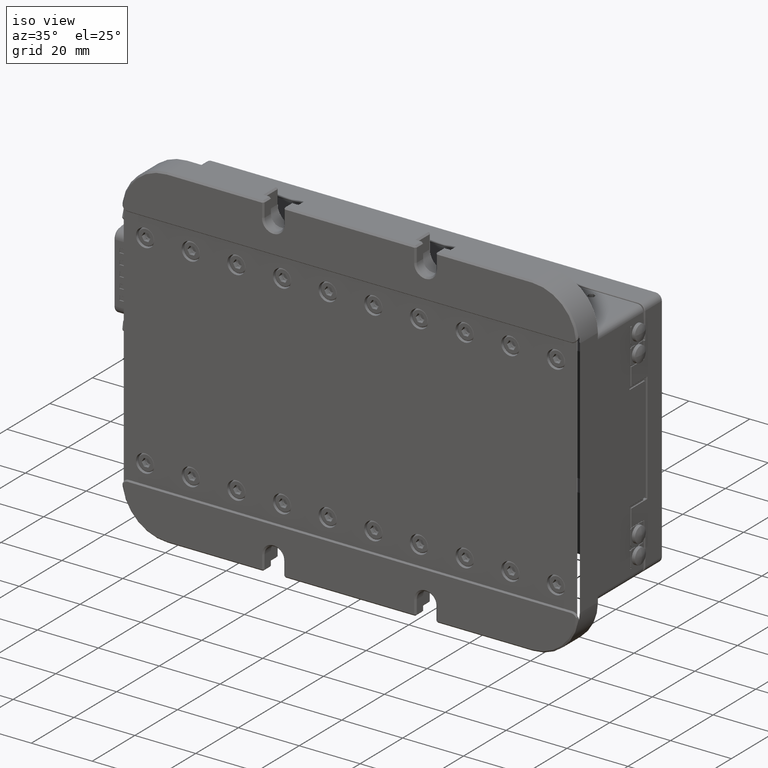
[diagram: clean part render]
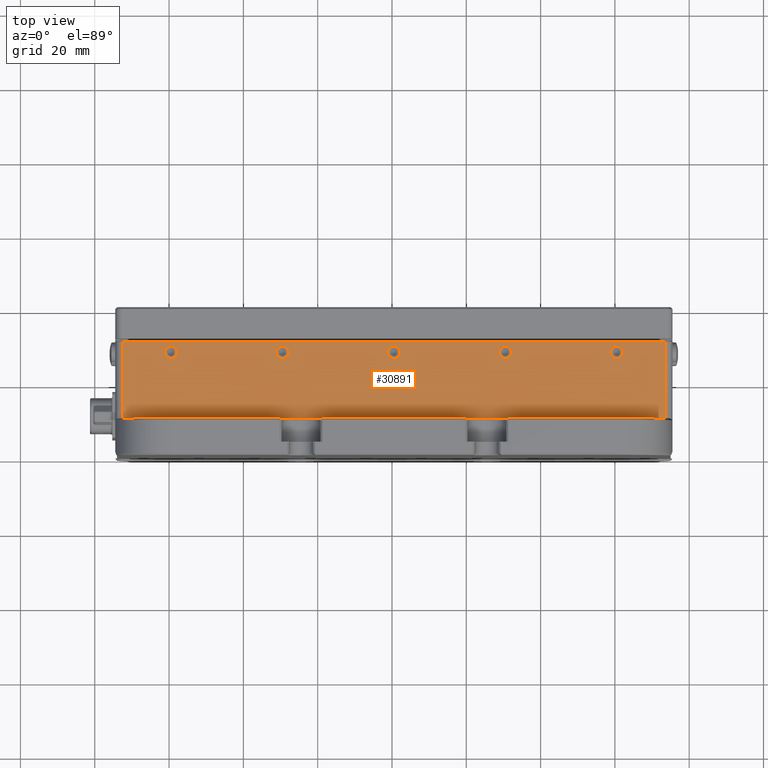
[diagram: tour spotlight — one face highlighted and labeled with its STEP entity id]
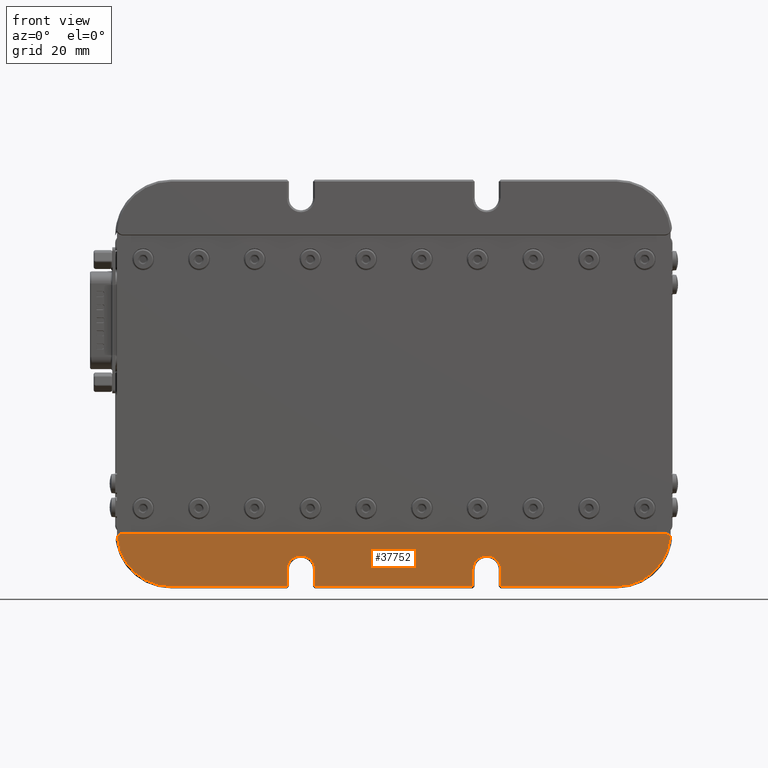
[diagram: tour spotlight — one face highlighted and labeled with its STEP entity id]
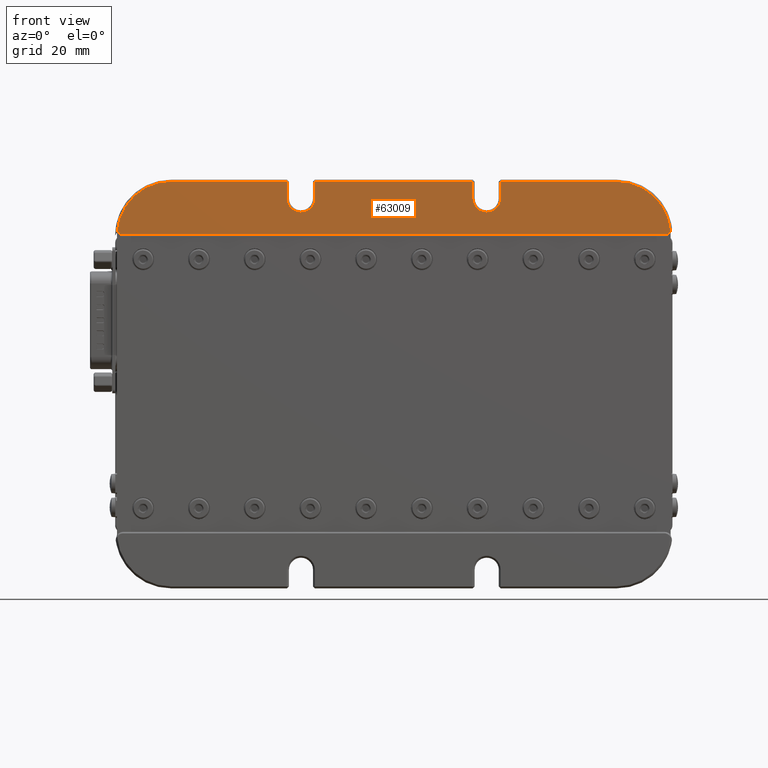
[diagram: tour spotlight — one face highlighted and labeled with its STEP entity id]
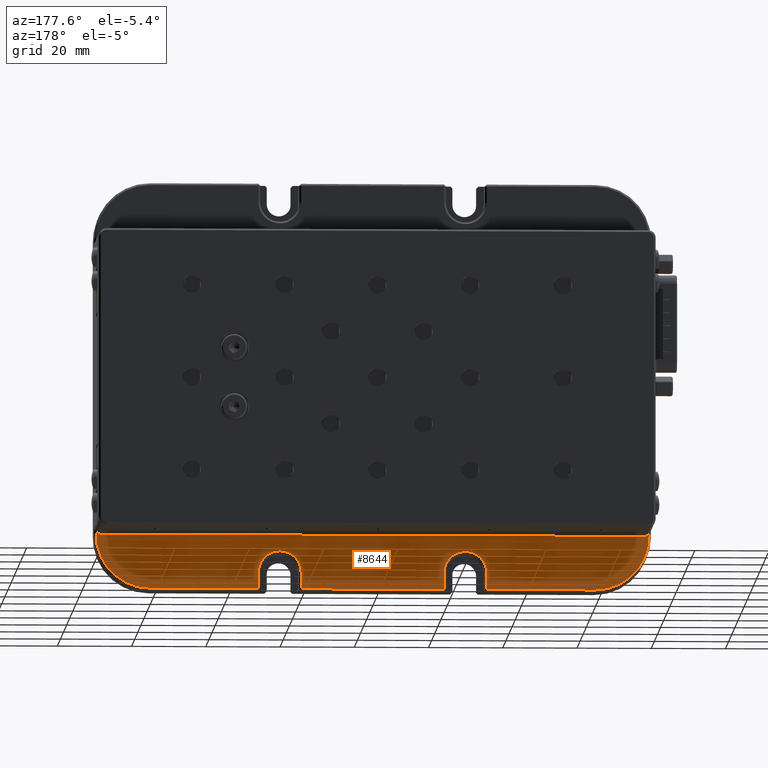
[diagram: tour spotlight — one face highlighted and labeled with its STEP entity id]
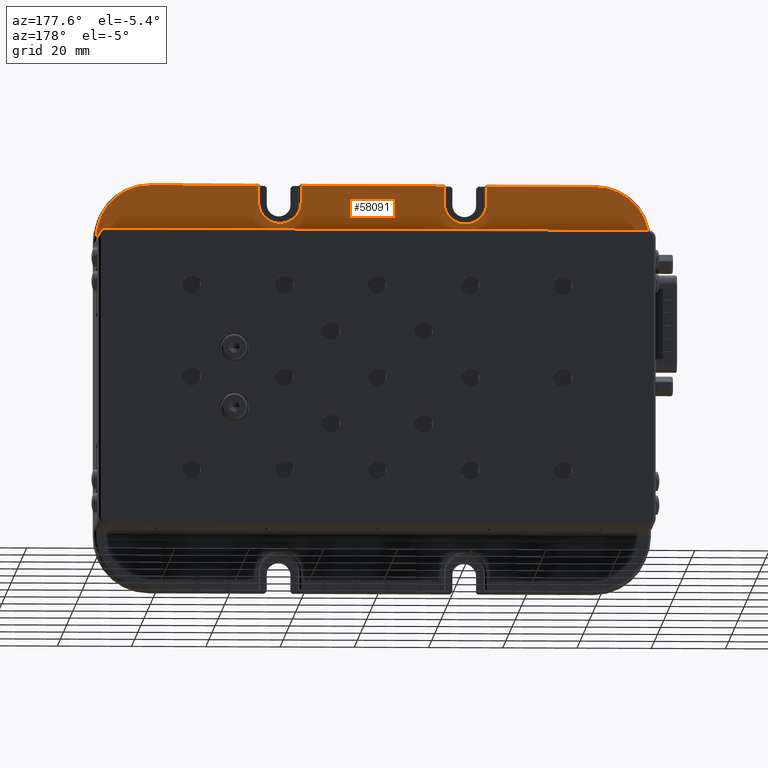
[diagram: tour spotlight — one face highlighted and labeled with its STEP entity id]
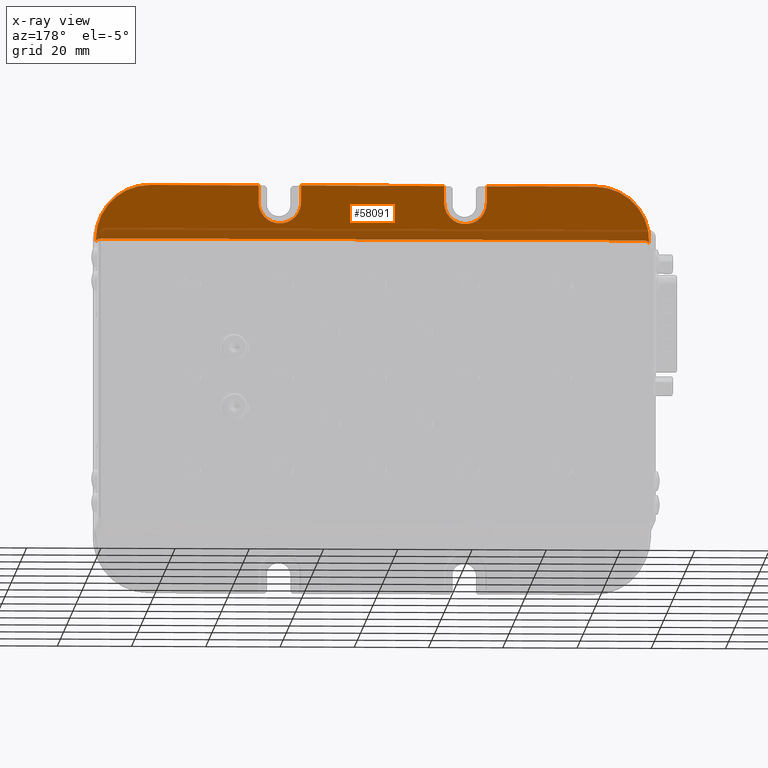
[diagram: x-ray of the same camera — body ghosted, this tour face saturated]
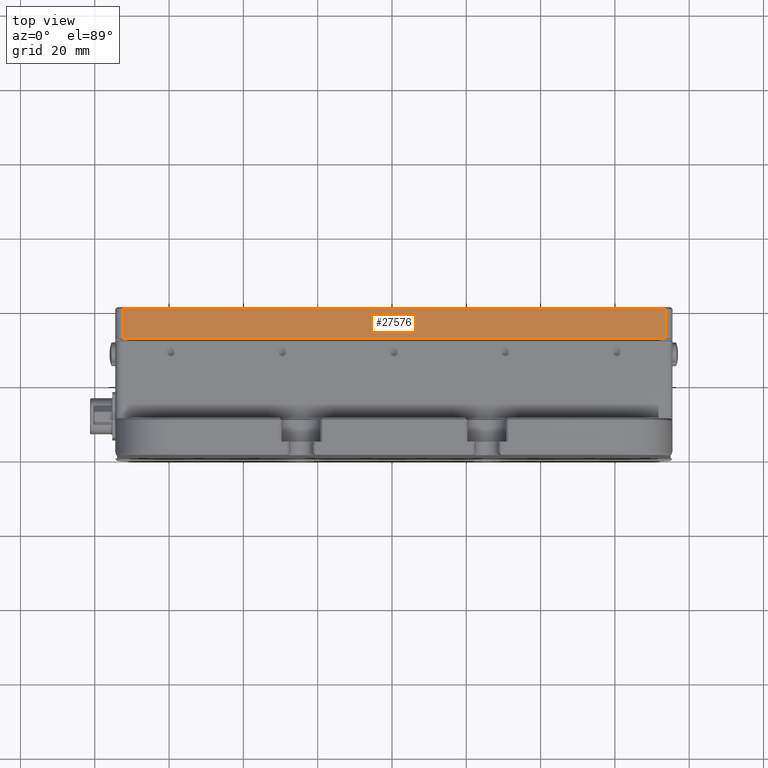
[diagram: tour spotlight — one face highlighted and labeled with its STEP entity id]
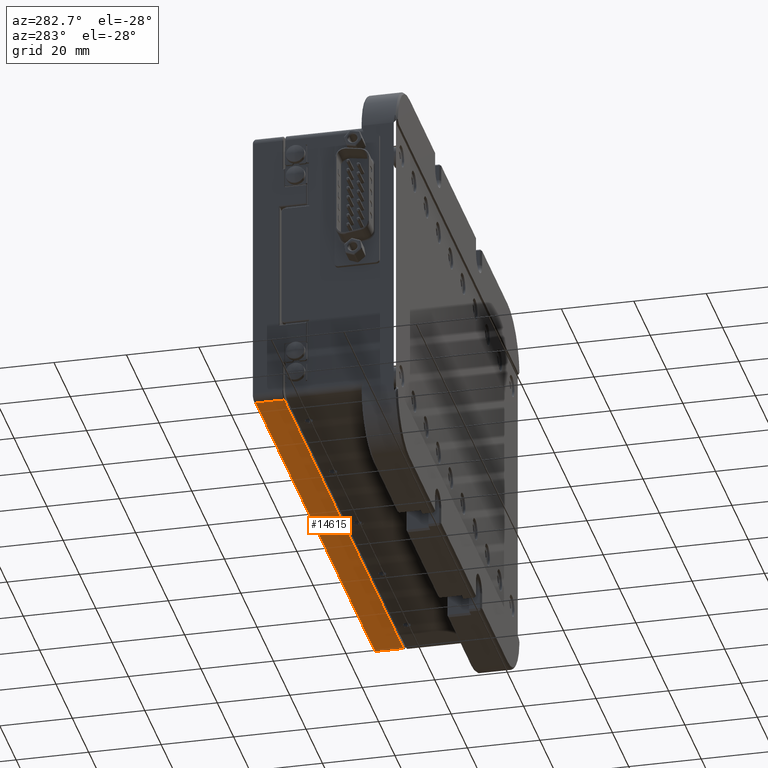
[diagram: tour spotlight — one face highlighted and labeled with its STEP entity id]
A machine part: a face-by-face anatomy tour. The part has 2095 B-rep faces; the first image is the clean iso view, then the 7 largest visible faces are spotlighted one at a time (largest first), each with its STEP entity span.

Face 1 — top view, entity #30891. In plain terms, the highlighted planar face has unit normal (0, 0, -1).
Definition (entity closure, byte-faithful):
#124 = DIRECTION ( 'NONE',  ( -0.0000000000000000000, -1.224646799147353200E-016, 1.000000000000000000 ) ) ;
#256 = DIRECTION ( 'NONE',  ( -0.0000000000000000000, -1.224646799147353200E-016, 1.000000000000000000 ) ) ;
#544 = FACE_BOUND ( 'NONE', #18933, .T. ) ;
#782 = EDGE_CURVE ( 'NONE', #15699, #8437, #41926, .T. ) ;
#1177 = VERTEX_POINT ( 'NONE', #50158 ) ;
#1205 = VERTEX_POINT ( 'NONE', #49735 ) ;
#2047 = ORIENTED_EDGE ( 'NONE', *, *, #3016, .F. ) ;
#2407 = DIRECTION ( 'NONE',  ( 0.0000000000000000000, 1.000000000000000000, 0.0000000000000000000 ) ) ;
#2471 = CARTESIAN_POINT ( 'NONE',  ( 147.5016253540470400, 30.79999999999980200, 89.61789066045832900 ) ) ;
#2863 = EDGE_LOOP ( 'NONE', ( #18107, #55306 ) ) ;
#3016 = EDGE_CURVE ( 'NONE', #8519, #18405, #25718, .T. ) ;
#3642 = EDGE_CURVE ( 'NONE', #8437, #15699, #12383, .T. ) ;
#3972 = AXIS2_PLACEMENT_3D ( 'NONE', #20548, #256, #55755 ) ;
#4245 = CARTESIAN_POINT ( 'NONE',  ( 145.5016253540470400, 9.999999999999985800, 89.61789066043776600 ) ) ;
#5271 = DIRECTION ( 'NONE',  ( 0.0000000000000000000, 1.224646799147353200E-016, -1.000000000000000000 ) ) ;
#5517 = LINE ( 'NONE', #17073, #41382 ) ;
#6795 = ORIENTED_EDGE ( 'NONE', *, *, #58100, .T. ) ;
#8286 = CIRCLE ( 'NONE', #54382, 1.649999999999998600 ) ;
#8437 = VERTEX_POINT ( 'NONE', #27688 ) ;
#8519 = VERTEX_POINT ( 'NONE', #15075 ) ;
#9782 = VECTOR ( 'NONE', #52776, 1000.000000000000000 ) ;
#9926 = CARTESIAN_POINT ( 'NONE',  ( 190.5016253540470100, 26.15000000000001600, 89.61789066043773700 ) ) ;
#10566 = AXIS2_PLACEMENT_3D ( 'NONE', #43746, #43531, #53509 ) ;
#10623 = EDGE_CURVE ( 'NONE', #49376, #55751, #53288, .T. ) ;
#11503 = VECTOR ( 'NONE', #55458, 1000.000000000000000 ) ;
#12281 = ORIENTED_EDGE ( 'NONE', *, *, #782, .F. ) ;
#12383 = CIRCLE ( 'NONE', #52270, 1.649999999999998600 ) ;
#13913 = CARTESIAN_POINT ( 'NONE',  ( 190.5016253540470100, 29.45000000000001400, 89.61789066043773700 ) ) ;
#14236 = PLANE ( 'NONE',  #36401 ) ;
#14313 = AXIS2_PLACEMENT_3D ( 'NONE', #56595, #57246, #2407 ) ;
#14948 = EDGE_CURVE ( 'NONE', #50960, #1177, #59677, .T. ) ;
#15075 = CARTESIAN_POINT ( 'NONE',  ( 160.5016253540470600, 29.45000000000002100, 89.61789066043773700 ) ) ;
#15699 = VERTEX_POINT ( 'NONE', #31194 ) ;
#16182 = LINE ( 'NONE', #35278, #11503 ) ;
#16657 = DIRECTION ( 'NONE',  ( -0.0000000000000000000, -1.224646799147353200E-016, 1.000000000000000000 ) ) ;
#16728 = CARTESIAN_POINT ( 'NONE',  ( 293.5016253540470100, 9.999999999999987600, 89.61789066043776600 ) ) ;
#17073 = CARTESIAN_POINT ( 'NONE',  ( 210.5016253540469500, 30.79999999999998300, 89.61789066043776600 ) ) ;
#17699 = VERTEX_POINT ( 'NONE', #16728 ) ;
#17993 = CARTESIAN_POINT ( 'NONE',  ( 293.5016253540470100, 30.99999999999998900, 89.61789066043776600 ) ) ;
#18107 = ORIENTED_EDGE ( 'NONE', *, *, #10623, .F. ) ;
#18405 = VERTEX_POINT ( 'NONE', #55708 ) ;
#18933 = EDGE_LOOP ( 'NONE', ( #21164, #23808 ) ) ;
#19349 = DIRECTION ( 'NONE',  ( -0.0000000000000000000, -1.224646799147353200E-016, 1.000000000000000000 ) ) ;
#19578 = CIRCLE ( 'NONE', #3972, 1.650000000000002100 ) ;
#19986 = DIRECTION ( 'NONE',  ( 0.0000000000000000000, 1.000000000000000000, 0.0000000000000000000 ) ) ;
#20398 = CARTESIAN_POINT ( 'NONE',  ( 190.5016253540470100, 27.80000000000001500, 89.61789066043773700 ) ) ;
#20548 = CARTESIAN_POINT ( 'NONE',  ( 160.5016253540470600, 27.80000000000001800, 89.61789066043773700 ) ) ;
#21164 = ORIENTED_EDGE ( 'NONE', *, *, #64500, .F. ) ;
#21423 = ORIENTED_EDGE ( 'NONE', *, *, #46644, .F. ) ;
#21669 = ORIENTED_EDGE ( 'NONE', *, *, #32660, .F. ) ;
#22107 = CARTESIAN_POINT ( 'NONE',  ( 190.5016253540470100, 27.80000000000001500, 89.61789066043773700 ) ) ;
#22753 = LINE ( 'NONE', #4245, #24302 ) ;
#23808 = ORIENTED_EDGE ( 'NONE', *, *, #55693, .F. ) ;
#24302 = VECTOR ( 'NONE', #63598, 1000.000000000000000 ) ;
#24433 = CARTESIAN_POINT ( 'NONE',  ( 125.5016253540469600, 30.99999999999998900, 89.61789066043776600 ) ) ;
#25718 = CIRCLE ( 'NONE', #32653, 1.650000000000002100 ) ;
#27688 = CARTESIAN_POINT ( 'NONE',  ( 220.5016253540470100, 26.14999999999998800, 89.61789066043773700 ) ) ;
#28972 = VERTEX_POINT ( 'NONE', #48124 ) ;
#30107 = AXIS2_PLACEMENT_3D ( 'NONE', #60091, #40381, #49489 ) ;
#30402 = DIRECTION ( 'NONE',  ( 0.0000000000000000000, 1.000000000000000000, 0.0000000000000000000 ) ) ;
#30891 = ADVANCED_FACE ( 'NONE', ( #60461, #52734, #37989, #47281, #544, #34067 ), #14236, .F. ) ;
#31194 = CARTESIAN_POINT ( 'NONE',  ( 220.5016253540470100, 29.44999999999998500, 89.61789066043773700 ) ) ;
#31794 = ORIENTED_EDGE ( 'NONE', *, *, #3642, .F. ) ;
#32456 = EDGE_CURVE ( 'NONE', #55751, #49376, #8286, .T. ) ;
#32533 = DIRECTION ( 'NONE',  ( 0.0000000000000000000, 1.000000000000000000, 0.0000000000000000000 ) ) ;
#32653 = AXIS2_PLACEMENT_3D ( 'NONE', #57681, #37748, #47686 ) ;
#32660 = EDGE_CURVE ( 'NONE', #36070, #17699, #36247, .T. ) ;
#33497 = CARTESIAN_POINT ( 'NONE',  ( 250.5016253540470100, 27.80000000000001500, 89.61789066043773700 ) ) ;
#33691 = CARTESIAN_POINT ( 'NONE',  ( 250.5016253540470100, 26.15000000000001300, 89.61789066043773700 ) ) ;
#34067 = FACE_BOUND ( 'NONE', #48433, .T. ) ;
#34350 = CARTESIAN_POINT ( 'NONE',  ( 220.5016253540470100, 27.79999999999998600, 89.61789066043773700 ) ) ;
#34906 = CARTESIAN_POINT ( 'NONE',  ( 293.5016253540470100, 30.79999999999998300, 89.61789066043776600 ) ) ;
#35278 = CARTESIAN_POINT ( 'NONE',  ( 147.5016253540470400, -1.022503125137107800E-014, 89.61789066043776600 ) ) ;
#35307 = DIRECTION ( 'NONE',  ( 0.0000000000000000000, 1.000000000000000000, 1.224646799147353200E-016 ) ) ;
#35337 = ORIENTED_EDGE ( 'NONE', *, *, #54675, .F. ) ;
#36070 = VERTEX_POINT ( 'NONE', #34906 ) ;
#36247 = LINE ( 'NONE', #17993, #9782 ) ;
#36401 = AXIS2_PLACEMENT_3D ( 'NONE', #24433, #5271, #35307 ) ;
#37748 = DIRECTION ( 'NONE',  ( -0.0000000000000000000, -1.224646799147353200E-016, 1.000000000000000000 ) ) ;
#37989 = FACE_BOUND ( 'NONE', #2863, .T. ) ;
#38217 = DIRECTION ( 'NONE',  ( -1.000000000000000000, -0.0000000000000000000, -0.0000000000000000000 ) ) ;
#39012 = EDGE_LOOP ( 'NONE', ( #12281, #31794 ) ) ;
#39855 = DIRECTION ( 'NONE',  ( 0.0000000000000000000, 1.000000000000000000, 0.0000000000000000000 ) ) ;
#40381 = DIRECTION ( 'NONE',  ( -0.0000000000000000000, -1.224646799147353200E-016, 1.000000000000000000 ) ) ;
#40798 = EDGE_CURVE ( 'NONE', #36070, #51097, #5517, .T. ) ;
#41382 = VECTOR ( 'NONE', #38217, 1000.000000000000000 ) ;
#41734 = AXIS2_PLACEMENT_3D ( 'NONE', #59370, #54597, #39855 ) ;
#41926 = CIRCLE ( 'NONE', #41734, 1.649999999999998600 ) ;
#42089 = ORIENTED_EDGE ( 'NONE', *, *, #14948, .F. ) ;
#43318 = VERTEX_POINT ( 'NONE', #57247 ) ;
#43531 = DIRECTION ( 'NONE',  ( -0.0000000000000000000, -1.224646799147353200E-016, 1.000000000000000000 ) ) ;
#43731 = DIRECTION ( 'NONE',  ( 0.0000000000000000000, 1.000000000000000000, 0.0000000000000000000 ) ) ;
#43746 = CARTESIAN_POINT ( 'NONE',  ( 280.5016253540470100, 27.80000000000001800, 89.61789066043773700 ) ) ;
#44111 = CIRCLE ( 'NONE', #30107, 1.650000000000002100 ) ;
#46644 = EDGE_CURVE ( 'NONE', #1177, #50960, #50672, .T. ) ;
#47281 = FACE_BOUND ( 'NONE', #52380, .T. ) ;
#47686 = DIRECTION ( 'NONE',  ( 0.0000000000000000000, 1.000000000000000000, 0.0000000000000000000 ) ) ;
#48075 = AXIS2_PLACEMENT_3D ( 'NONE', #33497, #124, #19986 ) ;
#48124 = CARTESIAN_POINT ( 'NONE',  ( 280.5016253540470100, 26.15000000000001600, 89.61789066043773700 ) ) ;
#48433 = EDGE_LOOP ( 'NONE', ( #21423, #42089 ) ) ;
#49376 = VERTEX_POINT ( 'NONE', #13913 ) ;
#49489 = DIRECTION ( 'NONE',  ( 0.0000000000000000000, 1.000000000000000000, 0.0000000000000000000 ) ) ;
#49558 = EDGE_LOOP ( 'NONE', ( #64092, #35337, #6795, #21669 ) ) ;
#49735 = CARTESIAN_POINT ( 'NONE',  ( 147.5016253540470400, 9.999999999999985800, 89.61789066043776600 ) ) ;
#50158 = CARTESIAN_POINT ( 'NONE',  ( 250.5016253540470100, 29.45000000000001700, 89.61789066043773700 ) ) ;
#50672 = CIRCLE ( 'NONE', #48075, 1.650000000000002100 ) ;
#50960 = VERTEX_POINT ( 'NONE', #33691 ) ;
#51097 = VERTEX_POINT ( 'NONE', #2471 ) ;
#52270 = AXIS2_PLACEMENT_3D ( 'NONE', #34350, #19349, #43731 ) ;
#52380 = EDGE_LOOP ( 'NONE', ( #2047, #53183 ) ) ;
#52734 = FACE_BOUND ( 'NONE', #39012, .T. ) ;
#52776 = DIRECTION ( 'NONE',  ( 0.0000000000000000000, -1.000000000000000000, -1.224646799147353200E-016 ) ) ;
#53183 = ORIENTED_EDGE ( 'NONE', *, *, #58690, .F. ) ;
#53288 = CIRCLE ( 'NONE', #61494, 1.649999999999998600 ) ;
#53509 = DIRECTION ( 'NONE',  ( 0.0000000000000000000, 1.000000000000000000, 0.0000000000000000000 ) ) ;
#54382 = AXIS2_PLACEMENT_3D ( 'NONE', #20398, #60773, #30402 ) ;
#54597 = DIRECTION ( 'NONE',  ( -0.0000000000000000000, -1.224646799147353200E-016, 1.000000000000000000 ) ) ;
#54675 = EDGE_CURVE ( 'NONE', #1205, #51097, #16182, .T. ) ;
#55306 = ORIENTED_EDGE ( 'NONE', *, *, #32456, .F. ) ;
#55458 = DIRECTION ( 'NONE',  ( -1.119176436114068600E-016, 1.000000000000000000, 1.224646799147353200E-016 ) ) ;
#55693 = EDGE_CURVE ( 'NONE', #28972, #43318, #44111, .T. ) ;
#55708 = CARTESIAN_POINT ( 'NONE',  ( 160.5016253540470600, 26.15000000000001600, 89.61789066043773700 ) ) ;
#55751 = VERTEX_POINT ( 'NONE', #9926 ) ;
#55755 = DIRECTION ( 'NONE',  ( 0.0000000000000000000, 1.000000000000000000, 0.0000000000000000000 ) ) ;
#56595 = CARTESIAN_POINT ( 'NONE',  ( 250.5016253540470100, 27.80000000000001500, 89.61789066043773700 ) ) ;
#57246 = DIRECTION ( 'NONE',  ( -0.0000000000000000000, -1.224646799147353200E-016, 1.000000000000000000 ) ) ;
#57247 = CARTESIAN_POINT ( 'NONE',  ( 280.5016253540470100, 29.45000000000002100, 89.61789066043773700 ) ) ;
#57681 = CARTESIAN_POINT ( 'NONE',  ( 160.5016253540470600, 27.80000000000001800, 89.61789066043773700 ) ) ;
#58100 = EDGE_CURVE ( 'NONE', #1205, #17699, #22753, .T. ) ;
#58690 = EDGE_CURVE ( 'NONE', #18405, #8519, #19578, .T. ) ;
#59370 = CARTESIAN_POINT ( 'NONE',  ( 220.5016253540470100, 27.79999999999998600, 89.61789066043773700 ) ) ;
#59677 = CIRCLE ( 'NONE', #14313, 1.650000000000002100 ) ;
#60091 = CARTESIAN_POINT ( 'NONE',  ( 280.5016253540470100, 27.80000000000001800, 89.61789066043773700 ) ) ;
#60461 = FACE_OUTER_BOUND ( 'NONE', #49558, .T. ) ;
#60773 = DIRECTION ( 'NONE',  ( -0.0000000000000000000, -1.224646799147353200E-016, 1.000000000000000000 ) ) ;
#61494 = AXIS2_PLACEMENT_3D ( 'NONE', #22107, #16657, #32533 ) ;
#62120 = CIRCLE ( 'NONE', #10566, 1.650000000000002100 ) ;
#63598 = DIRECTION ( 'NONE',  ( 1.000000000000000000, 1.156482317317871800E-017, 1.416282368173845200E-033 ) ) ;
#64092 = ORIENTED_EDGE ( 'NONE', *, *, #40798, .T. ) ;
#64500 = EDGE_CURVE ( 'NONE', #43318, #28972, #62120, .T. ) ;

Face 2 — front view, entity #37752. In plain terms, the highlighted planar face has unit normal (0, -1, -0).
Definition (entity closure, byte-faithful):
#969 = EDGE_CURVE ( 'NONE', #38773, #38970, #16234, .T. ) ;
#1975 = EDGE_CURVE ( 'NONE', #29173, #30920, #56598, .T. ) ;
#2273 = LINE ( 'NONE', #20412, #30340 ) ;
#2454 = VERTEX_POINT ( 'NONE', #46055 ) ;
#2497 = AXIS2_PLACEMENT_3D ( 'NONE', #8240, #42666, #13262 ) ;
#2768 = EDGE_CURVE ( 'NONE', #38970, #22628, #62715, .T. ) ;
#3126 = VECTOR ( 'NONE', #54275, 1000.000000000000000 ) ;
#3189 = DIRECTION ( 'NONE',  ( 4.065758146787460800E-017, 1.000000000000000000, 1.151964808256447200E-016 ) ) ;
#3947 = LINE ( 'NONE', #53848, #3126 ) ;
#5755 = VECTOR ( 'NONE', #25005, 1000.000000000000000 ) ;
#5823 = LINE ( 'NONE', #17596, #52514 ) ;
#6191 = AXIS2_PLACEMENT_3D ( 'NONE', #25869, #38084, #44974 ) ;
#6556 = VERTEX_POINT ( 'NONE', #59944 ) ;
#7257 = CARTESIAN_POINT ( 'NONE',  ( 127.7783170407174100, -2.195509399283146500E-015, 9.417890660437729300 ) ) ;
#7374 = EDGE_CURVE ( 'NONE', #39229, #29173, #12013, .T. ) ;
#8240 = CARTESIAN_POINT ( 'NONE',  ( 245.5016253540470100, -4.679489796198359900E-017, -0.3821093395622379700 ) ) ;
#8530 = DIRECTION ( 'NONE',  ( -0.0000000000000000000, -1.224646799147353200E-016, 1.000000000000000000 ) ) ;
#8949 = ORIENTED_EDGE ( 'NONE', *, *, #36406, .F. ) ;
#10732 = ORIENTED_EDGE ( 'NONE', *, *, #12874, .T. ) ;
#10963 = CARTESIAN_POINT ( 'NONE',  ( 241.7516253540470600, -2.160457826280475900E-015, -4.882109339562283900 ) ) ;
#10976 = CIRCLE ( 'NONE', #47013, 1.800000000002909500 ) ;
#12013 = LINE ( 'NONE', #64314, #5755 ) ;
#12421 = CARTESIAN_POINT ( 'NONE',  ( 249.2516253540469500, -1.541990240971818600E-015, -0.3821093395622483500 ) ) ;
#12874 = EDGE_CURVE ( 'NONE', #37825, #33005, #3947, .T. ) ;
#13060 = CARTESIAN_POINT ( 'NONE',  ( 195.5016253540470400, -4.679489796740523600E-017, -0.3821093395622240900 ) ) ;
#13262 = DIRECTION ( 'NONE',  ( 0.0000000000000000000, 1.224646799147353500E-016, -1.000000000000000000 ) ) ;
#15882 = AXIS2_PLACEMENT_3D ( 'NONE', #13060, #43088, #47814 ) ;
#16234 = CIRCLE ( 'NONE', #2497, 3.750000000019959600 ) ;
#17596 = CARTESIAN_POINT ( 'NONE',  ( 241.7516253540470600, -8.348220432289655100E-015, 49.61789066043776600 ) ) ;
#18942 = ORIENTED_EDGE ( 'NONE', *, *, #53637, .T. ) ;
#18956 = VERTEX_POINT ( 'NONE', #59996 ) ;
#20412 = CARTESIAN_POINT ( 'NONE',  ( 210.5016253540469500, -1.673895376936575500E-015, -4.882109339562276800 ) ) ;
#20454 = AXIS2_PLACEMENT_3D ( 'NONE', #57120, #51703, #42185 ) ;
#22624 = ORIENTED_EDGE ( 'NONE', *, *, #1975, .T. ) ;
#22628 = VERTEX_POINT ( 'NONE', #37860 ) ;
#23750 = CARTESIAN_POINT ( 'NONE',  ( 191.7516253540470600, -8.348220432289655100E-015, 49.61789066043776600 ) ) ;
#24009 = EDGE_CURVE ( 'NONE', #33005, #38773, #5823, .T. ) ;
#25005 = DIRECTION ( 'NONE',  ( 1.000000000000000000, -0.0000000000000000000, 0.0000000000000000000 ) ) ;
#25869 = CARTESIAN_POINT ( 'NONE',  ( 280.5016253540470100, -2.482822974991805200E-014, 9.617890660437764100 ) ) ;
#26458 = DIRECTION ( 'NONE',  ( 0.0000000000000000000, 1.224646799147353200E-016, -1.000000000000000000 ) ) ;
#26867 = EDGE_CURVE ( 'NONE', #34836, #44735, #59418, .T. ) ;
#27562 = DIRECTION ( 'NONE',  ( -0.0000000000000000000, -1.224646799147353200E-016, 1.000000000000000000 ) ) ;
#29173 = VERTEX_POINT ( 'NONE', #39017 ) ;
#29248 = ORIENTED_EDGE ( 'NONE', *, *, #2768, .T. ) ;
#30148 = VECTOR ( 'NONE', #8530, 1000.000000000000000 ) ;
#30340 = VECTOR ( 'NONE', #49338, 1000.000000000000000 ) ;
#30888 = CARTESIAN_POINT ( 'NONE',  ( 147.6563927753819000, -1.857787670009024800E-015, 9.417890660437732800 ) ) ;
#30920 = VERTEX_POINT ( 'NONE', #54631 ) ;
#33005 = VERTEX_POINT ( 'NONE', #10963 ) ;
#33031 = CARTESIAN_POINT ( 'NONE',  ( 147.6563927753819000, -8.131516293641283300E-017, 7.617890660437755200 ) ) ;
#33098 = CARTESIAN_POINT ( 'NONE',  ( 160.5016253540470600, 1.734723475976807100E-015, 9.617890660437764100 ) ) ;
#33156 = ORIENTED_EDGE ( 'NONE', *, *, #35547, .F. ) ;
#34836 = VERTEX_POINT ( 'NONE', #61529 ) ;
#35144 = CARTESIAN_POINT ( 'NONE',  ( 249.2516253540469500, -8.348220432289655100E-015, 49.61789066043776600 ) ) ;
#35216 = CARTESIAN_POINT ( 'NONE',  ( 160.5016253540470600, 7.741485454999110500E-016, -4.882109339562279400 ) ) ;
#35547 = EDGE_CURVE ( 'NONE', #2454, #34836, #10976, .T. ) ;
#36406 = EDGE_CURVE ( 'NONE', #39229, #6556, #38897, .T. ) ;
#37134 = VECTOR ( 'NONE', #26458, 1000.000000000000000 ) ;
#37257 = CARTESIAN_POINT ( 'NONE',  ( 241.7516253540345600, -2.339744898114817900E-017, -0.3821093395622379700 ) ) ;
#37594 = EDGE_CURVE ( 'NONE', #30920, #18956, #54419, .T. ) ;
#37752 = ADVANCED_FACE ( 'NONE', ( #46556 ), #42617, .T. ) ;
#37825 = VERTEX_POINT ( 'NONE', #48193 ) ;
#37860 = CARTESIAN_POINT ( 'NONE',  ( 249.2516253540469500, -1.501668746271856000E-015, -4.882109339562284800 ) ) ;
#38084 = DIRECTION ( 'NONE',  ( -3.614007241618338700E-017, 1.000000000000000000, 1.228762462150233300E-016 ) ) ;
#38093 = DIRECTION ( 'NONE',  ( 0.0000000000000000000, -1.151964808256447000E-016, 1.000000000000000000 ) ) ;
#38157 = DIRECTION ( 'NONE',  ( 0.0000000000000000000, -1.228762462150234800E-016, 1.000000000000000000 ) ) ;
#38773 = VERTEX_POINT ( 'NONE', #37257 ) ;
#38897 = CIRCLE ( 'NONE', #47878, 14.50000000000004100 ) ;
#38970 = VERTEX_POINT ( 'NONE', #12421 ) ;
#39017 = CARTESIAN_POINT ( 'NONE',  ( 191.7516253540470600, -2.160457826280475900E-015, -4.882109339562283900 ) ) ;
#39229 = VERTEX_POINT ( 'NONE', #35216 ) ;
#41061 = CARTESIAN_POINT ( 'NONE',  ( 199.2516253540469800, -8.348220432289655100E-015, 49.61789066043776600 ) ) ;
#41557 = ORIENTED_EDGE ( 'NONE', *, *, #49729, .T. ) ;
#41775 = ORIENTED_EDGE ( 'NONE', *, *, #969, .T. ) ;
#42108 = DIRECTION ( 'NONE',  ( 1.000000000000000000, -5.612580614945860800E-017, 5.612580614945743700E-017 ) ) ;
#42185 = DIRECTION ( 'NONE',  ( 0.0000000000000000000, 1.224646799147353200E-016, -1.000000000000000000 ) ) ;
#42617 = PLANE ( 'NONE',  #20454 ) ;
#42666 = DIRECTION ( 'NONE',  ( 1.247863945644573100E-017, 1.000000000000000000, 1.224646799147353500E-016 ) ) ;
#43088 = DIRECTION ( 'NONE',  ( 1.247863945824875200E-017, 1.000000000000000000, 1.224646799156320800E-016 ) ) ;
#43226 = ORIENTED_EDGE ( 'NONE', *, *, #26867, .F. ) ;
#43907 = DIRECTION ( 'NONE',  ( 2.710505431134765300E-017, 1.000000000000000000, 1.219727444010644400E-016 ) ) ;
#44485 = VECTOR ( 'NONE', #42108, 1000.000000000000000 ) ;
#44735 = VERTEX_POINT ( 'NONE', #52462 ) ;
#44974 = DIRECTION ( 'NONE',  ( 0.0000000000000000000, -1.228762462150233600E-016, 1.000000000000000000 ) ) ;
#45106 = VERTEX_POINT ( 'NONE', #30888 ) ;
#46055 = CARTESIAN_POINT ( 'NONE',  ( 293.3468579327122300, 4.049035419759680400E-012, 9.417890660433686300 ) ) ;
#46556 = FACE_OUTER_BOUND ( 'NONE', #56655, .T. ) ;
#47013 = AXIS2_PLACEMENT_3D ( 'NONE', #53870, #43907, #49086 ) ;
#47814 = DIRECTION ( 'NONE',  ( 0.0000000000000000000, 1.224646799156320600E-016, -1.000000000000000000 ) ) ;
#47878 = AXIS2_PLACEMENT_3D ( 'NONE', #33098, #57234, #38157 ) ;
#48193 = CARTESIAN_POINT ( 'NONE',  ( 199.2516253540469800, -2.423240592884535600E-015, -4.882109339562276800 ) ) ;
#49086 = DIRECTION ( 'NONE',  ( 0.0000000000000000000, -1.219727444014419600E-016, 1.000000000000000000 ) ) ;
#49223 = ORIENTED_EDGE ( 'NONE', *, *, #37594, .T. ) ;
#49338 = DIRECTION ( 'NONE',  ( 1.000000000000000000, -0.0000000000000000000, 0.0000000000000000000 ) ) ;
#49397 = EDGE_CURVE ( 'NONE', #6556, #45106, #58898, .T. ) ;
#49729 = EDGE_CURVE ( 'NONE', #18956, #37825, #60370, .T. ) ;
#50127 = ORIENTED_EDGE ( 'NONE', *, *, #58819, .F. ) ;
#51477 = ORIENTED_EDGE ( 'NONE', *, *, #24009, .T. ) ;
#51703 = DIRECTION ( 'NONE',  ( 0.0000000000000000000, -1.000000000000000000, -1.224646799147353200E-016 ) ) ;
#52462 = CARTESIAN_POINT ( 'NONE',  ( 280.5016253540470100, -1.416454220119412000E-014, -4.882109339562278500 ) ) ;
#52514 = VECTOR ( 'NONE', #27562, 1000.000000000000000 ) ;
#53637 = EDGE_CURVE ( 'NONE', #22628, #44735, #2273, .T. ) ;
#53738 = ORIENTED_EDGE ( 'NONE', *, *, #7374, .T. ) ;
#53848 = CARTESIAN_POINT ( 'NONE',  ( 210.5016253540469500, -1.673895376936575500E-015, -4.882109339562276800 ) ) ;
#53870 = CARTESIAN_POINT ( 'NONE',  ( 293.3468579327122300, 8.103814928134278600E-012, 7.617890660437770300 ) ) ;
#54275 = DIRECTION ( 'NONE',  ( 1.000000000000000000, -0.0000000000000000000, 0.0000000000000000000 ) ) ;
#54419 = CIRCLE ( 'NONE', #15882, 3.750000000031339400 ) ;
#54430 = ORIENTED_EDGE ( 'NONE', *, *, #49397, .F. ) ;
#54631 = CARTESIAN_POINT ( 'NONE',  ( 191.7516253540676400, 2.842115318379487000E-011, -0.3821093395622240900 ) ) ;
#55678 = AXIS2_PLACEMENT_3D ( 'NONE', #33031, #3189, #38093 ) ;
#56598 = LINE ( 'NONE', #23750, #30148 ) ;
#56655 = EDGE_LOOP ( 'NONE', ( #29248, #18942, #43226, #33156, #50127, #54430, #8949, #53738, #22624, #49223, #41557, #10732, #51477, #41775 ) ) ;
#57120 = CARTESIAN_POINT ( 'NONE',  ( 210.5016253540469500, -8.348220432289655100E-015, 49.61789066043776600 ) ) ;
#57234 = DIRECTION ( 'NONE',  ( -3.614007241618338000E-017, 1.000000000000000000, 1.228762462150234800E-016 ) ) ;
#57664 = LINE ( 'NONE', #7257, #44485 ) ;
#58819 = EDGE_CURVE ( 'NONE', #45106, #2454, #57664, .T. ) ;
#58898 = CIRCLE ( 'NONE', #55678, 1.800000000066526200 ) ;
#59418 = CIRCLE ( 'NONE', #6191, 14.50000000000005900 ) ;
#59944 = CARTESIAN_POINT ( 'NONE',  ( 146.0503151247376900, 4.697312826698490600E-016, 8.430611141427913700 ) ) ;
#59996 = CARTESIAN_POINT ( 'NONE',  ( 199.2516253540469800, -1.541990240977911600E-015, -0.3821093395622275900 ) ) ;
#60082 = DIRECTION ( 'NONE',  ( 0.0000000000000000000, 1.224646799147353200E-016, -1.000000000000000000 ) ) ;
#60370 = LINE ( 'NONE', #41061, #37134 ) ;
#60400 = VECTOR ( 'NONE', #60082, 1000.000000000000000 ) ;
#61529 = CARTESIAN_POINT ( 'NONE',  ( 294.9529355833516900, 5.192287485871047600E-012, 8.430611141362600600 ) ) ;
#62715 = LINE ( 'NONE', #35144, #60400 ) ;
#64314 = CARTESIAN_POINT ( 'NONE',  ( 210.5016253540469500, -1.673895376936575500E-015, -4.882109339562276800 ) ) ;

Face 3 — front view, entity #63009. In plain terms, the highlighted planar face has unit normal (0, -1, -0).
Definition (entity closure, byte-faithful):
#375 = DIRECTION ( 'NONE',  ( 0.0000000000000000000, -1.219727444025217900E-016, 1.000000000000000000 ) ) ;
#806 = CARTESIAN_POINT ( 'NONE',  ( 293.3468579327122300, 5.684336465069939100E-011, 91.61789066043778000 ) ) ;
#1162 = CIRCLE ( 'NONE', #26972, 1.800000000051649200 ) ;
#1199 = DIRECTION ( 'NONE',  ( 0.0000000000000000000, -1.228762462150240200E-016, 1.000000000000000000 ) ) ;
#2164 = CARTESIAN_POINT ( 'NONE',  ( 147.6563927753819000, 1.420451946052090200E-011, 89.81789066041740500 ) ) ;
#3029 = EDGE_CURVE ( 'NONE', #12100, #18568, #26472, .T. ) ;
#4888 = CARTESIAN_POINT ( 'NONE',  ( 293.3468579327122300, 2.841469002482552100E-011, 89.81789066040940400 ) ) ;
#4898 = DIRECTION ( 'NONE',  ( -1.509566978086833300E-017, 1.000000000000000000, 1.224646799122910400E-016 ) ) ;
#5260 = VERTEX_POINT ( 'NONE', #27982 ) ;
#5590 = DIRECTION ( 'NONE',  ( 0.0000000000000000000, 1.224646799121260600E-016, -1.000000000000000000 ) ) ;
#5804 = CARTESIAN_POINT ( 'NONE',  ( 199.2516253540470600, -1.453605118622318900E-014, 104.1178906604377200 ) ) ;
#5926 = VERTEX_POINT ( 'NONE', #62875 ) ;
#6794 = CARTESIAN_POINT ( 'NONE',  ( 210.5016253540469500, -1.502254548764272500E-014, 104.1178906604377200 ) ) ;
#6832 = CARTESIAN_POINT ( 'NONE',  ( 199.2516253540470600, -8.348220432289655100E-015, 49.61789066043776600 ) ) ;
#7256 = DIRECTION ( 'NONE',  ( 0.0000000000000000000, 1.224646799147353200E-016, -1.000000000000000000 ) ) ;
#7569 = LINE ( 'NONE', #13683, #19254 ) ;
#7595 = VERTEX_POINT ( 'NONE', #50211 ) ;
#7847 = ORIENTED_EDGE ( 'NONE', *, *, #54951, .T. ) ;
#7910 = CARTESIAN_POINT ( 'NONE',  ( 160.5016253540470600, -1.358967038562205400E-014, 104.1178906604377200 ) ) ;
#9480 = CIRCLE ( 'NONE', #11603, 3.749999999968167700 ) ;
#10362 = DIRECTION ( 'NONE',  ( 0.0000000000000000000, 1.224646799121260600E-016, -1.000000000000000000 ) ) ;
#10599 = DIRECTION ( 'NONE',  ( -1.509566978086833300E-017, 1.000000000000000000, 1.224646799122910400E-016 ) ) ;
#10607 = PLANE ( 'NONE',  #29237 ) ;
#10689 = CIRCLE ( 'NONE', #46662, 3.750000000025011100 ) ;
#11015 = CARTESIAN_POINT ( 'NONE',  ( 191.7516253540470100, -8.348220432289655100E-015, 49.61789066043776600 ) ) ;
#11603 = AXIS2_PLACEMENT_3D ( 'NONE', #28071, #38552, #28279 ) ;
#12100 = VERTEX_POINT ( 'NONE', #4888 ) ;
#12735 = AXIS2_PLACEMENT_3D ( 'NONE', #19172, #13964, #58488 ) ;
#13058 = CARTESIAN_POINT ( 'NONE',  ( 210.5016253540469500, -1.502254548764272500E-014, 104.1178906604377200 ) ) ;
#13264 = VECTOR ( 'NONE', #42960, 1000.000000000000000 ) ;
#13683 = CARTESIAN_POINT ( 'NONE',  ( 249.2516253540470400, -8.348220432289655100E-015, 49.61789066043776600 ) ) ;
#13964 = DIRECTION ( 'NONE',  ( -1.509566978105134600E-017, 1.000000000000000000, 1.224646799137757500E-016 ) ) ;
#14316 = ORIENTED_EDGE ( 'NONE', *, *, #19442, .T. ) ;
#14748 = LINE ( 'NONE', #6832, #18666 ) ;
#15258 = EDGE_CURVE ( 'NONE', #18568, #5926, #37997, .T. ) ;
#16330 = CIRCLE ( 'NONE', #12735, 3.749999999968167700 ) ;
#16923 = DIRECTION ( 'NONE',  ( -2.710505431191640600E-017, 1.000000000000000000, 1.219727444036238300E-016 ) ) ;
#17401 = CIRCLE ( 'NONE', #19897, 14.49999999999995700 ) ;
#17589 = CARTESIAN_POINT ( 'NONE',  ( 147.6563927753819000, -2.168404344971008900E-016, 91.61789066043776600 ) ) ;
#18524 = ORIENTED_EDGE ( 'NONE', *, *, #41391, .T. ) ;
#18568 = VERTEX_POINT ( 'NONE', #2164 ) ;
#18666 = VECTOR ( 'NONE', #7256, 1000.000000000000000 ) ;
#19172 = CARTESIAN_POINT ( 'NONE',  ( 195.5016253540470400, 6.317174670993308600E-011, 99.61789066043776600 ) ) ;
#19254 = VECTOR ( 'NONE', #28225, 1000.000000000000000 ) ;
#19442 = EDGE_CURVE ( 'NONE', #22730, #29776, #38981, .T. ) ;
#19897 = AXIS2_PLACEMENT_3D ( 'NONE', #21263, #51479, #1199 ) ;
#19940 = ORIENTED_EDGE ( 'NONE', *, *, #34876, .T. ) ;
#20135 = ORIENTED_EDGE ( 'NONE', *, *, #52200, .T. ) ;
#20775 = CARTESIAN_POINT ( 'NONE',  ( 280.5016253540470100, -1.387778780781445700E-014, 89.61789066043776600 ) ) ;
#21263 = CARTESIAN_POINT ( 'NONE',  ( 160.5016253540470600, -1.398620802506300700E-014, 89.61789066043776600 ) ) ;
#22730 = VERTEX_POINT ( 'NONE', #49509 ) ;
#23263 = CARTESIAN_POINT ( 'NONE',  ( 191.7516253540470100, -1.438168863686768600E-014, 104.1178906604377200 ) ) ;
#23970 = CARTESIAN_POINT ( 'NONE',  ( 249.2516253540545400, 4.010324551002559600E-011, 99.61789066043778000 ) ) ;
#24303 = CIRCLE ( 'NONE', #55117, 14.49999999999995700 ) ;
#24593 = CARTESIAN_POINT ( 'NONE',  ( 241.7516253540728700, 2.588909902457964300E-011, 99.61789066043780800 ) ) ;
#25972 = DIRECTION ( 'NONE',  ( 0.0000000000000000000, -1.228762462150235800E-016, 1.000000000000000000 ) ) ;
#25993 = VECTOR ( 'NONE', #30155, 1000.000000000000000 ) ;
#26088 = EDGE_CURVE ( 'NONE', #7595, #12100, #1162, .T. ) ;
#26412 = ORIENTED_EDGE ( 'NONE', *, *, #26088, .F. ) ;
#26442 = VECTOR ( 'NONE', #51387, 1000.000000000000000 ) ;
#26472 = LINE ( 'NONE', #27679, #13264 ) ;
#26654 = EDGE_CURVE ( 'NONE', #60664, #61767, #55552, .T. ) ;
#26972 = AXIS2_PLACEMENT_3D ( 'NONE', #806, #30241, #375 ) ;
#27679 = CARTESIAN_POINT ( 'NONE',  ( 127.7783170407174100, -2.683400376901623500E-014, 89.81789066043781100 ) ) ;
#27739 = CARTESIAN_POINT ( 'NONE',  ( 241.7516253540469800, -8.348220432289655100E-015, 49.61789066043776600 ) ) ;
#27967 = CARTESIAN_POINT ( 'NONE',  ( 191.7516253540785800, 3.157899202549642300E-011, 99.61789066043780800 ) ) ;
#27982 = CARTESIAN_POINT ( 'NONE',  ( 241.7516253540469800, -1.438168863686768600E-014, 104.1178906604377200 ) ) ;
#28071 = CARTESIAN_POINT ( 'NONE',  ( 195.5016253540470400, 6.317174670993308600E-011, 99.61789066043776600 ) ) ;
#28225 = DIRECTION ( 'NONE',  ( 0.0000000000000000000, 1.224646799147353200E-016, -1.000000000000000000 ) ) ;
#28279 = DIRECTION ( 'NONE',  ( 0.0000000000000000000, 1.224646799139824000E-016, -1.000000000000000000 ) ) ;
#28573 = VERTEX_POINT ( 'NONE', #29664 ) ;
#29237 = AXIS2_PLACEMENT_3D ( 'NONE', #39987, #46285, #49551 ) ;
#29441 = EDGE_CURVE ( 'NONE', #28573, #37420, #40507, .T. ) ;
#29664 = CARTESIAN_POINT ( 'NONE',  ( 280.5016253540470100, -1.873963070492819500E-014, 104.1178906604377400 ) ) ;
#29776 = VERTEX_POINT ( 'NONE', #24593 ) ;
#30043 = EDGE_LOOP ( 'NONE', ( #61776, #37327, #49963, #57891, #39294, #26412, #20135, #64151, #47075, #56118, #14316, #35292, #7847, #57684, #19940, #18524 ) ) ;
#30155 = DIRECTION ( 'NONE',  ( -0.0000000000000000000, -1.224646799147353200E-016, 1.000000000000000000 ) ) ;
#30241 = DIRECTION ( 'NONE',  ( -3.388131788918456900E-017, 1.000000000000000000, 1.219727444010640300E-016 ) ) ;
#31068 = EDGE_CURVE ( 'NONE', #61767, #38290, #55006, .T. ) ;
#33250 = VECTOR ( 'NONE', #55485, 1000.000000000000000 ) ;
#34060 = EDGE_CURVE ( 'NONE', #38290, #5926, #17401, .T. ) ;
#34876 = EDGE_CURVE ( 'NONE', #54841, #48885, #9480, .T. ) ;
#35292 = ORIENTED_EDGE ( 'NONE', *, *, #55512, .T. ) ;
#35797 = DIRECTION ( 'NONE',  ( -3.614007241618344200E-017, -1.000000000000000000, -1.228762462150236800E-016 ) ) ;
#37327 = ORIENTED_EDGE ( 'NONE', *, *, #31068, .T. ) ;
#37420 = VERTEX_POINT ( 'NONE', #55667 ) ;
#37997 = CIRCLE ( 'NONE', #57981, 1.800000000009682700 ) ;
#38290 = VERTEX_POINT ( 'NONE', #7910 ) ;
#38552 = DIRECTION ( 'NONE',  ( -1.509566978105134600E-017, 1.000000000000000000, 1.224646799137757500E-016 ) ) ;
#38981 = CIRCLE ( 'NONE', #54145, 3.750000000025011100 ) ;
#39294 = ORIENTED_EDGE ( 'NONE', *, *, #3029, .F. ) ;
#39987 = CARTESIAN_POINT ( 'NONE',  ( 210.5016253540469500, -8.348220432289655100E-015, 49.61789066043776600 ) ) ;
#40292 = LINE ( 'NONE', #13058, #59699 ) ;
#40424 = CARTESIAN_POINT ( 'NONE',  ( 245.5016253540470100, 5.179196070809952000E-011, 99.61789066043779400 ) ) ;
#40507 = LINE ( 'NONE', #6794, #26442 ) ;
#41391 = EDGE_CURVE ( 'NONE', #48885, #60664, #16330, .T. ) ;
#41753 = EDGE_CURVE ( 'NONE', #43904, #54841, #14748, .T. ) ;
#42449 = DIRECTION ( 'NONE',  ( -1.000000000000000000, 0.0000000000000000000, -0.0000000000000000000 ) ) ;
#42960 = DIRECTION ( 'NONE',  ( -1.000000000000000000, -7.483440819927814000E-017, -7.483440819927759700E-017 ) ) ;
#43514 = VERTEX_POINT ( 'NONE', #23970 ) ;
#43904 = VERTEX_POINT ( 'NONE', #5804 ) ;
#46285 = DIRECTION ( 'NONE',  ( 0.0000000000000000000, -1.000000000000000000, -1.224646799147353200E-016 ) ) ;
#46662 = AXIS2_PLACEMENT_3D ( 'NONE', #40424, #10599, #5590 ) ;
#47075 = ORIENTED_EDGE ( 'NONE', *, *, #49324, .T. ) ;
#48885 = VERTEX_POINT ( 'NONE', #60001 ) ;
#49324 = EDGE_CURVE ( 'NONE', #37420, #43514, #7569, .T. ) ;
#49509 = CARTESIAN_POINT ( 'NONE',  ( 245.5016253540470100, 5.179241995064919400E-011, 95.86789066041278300 ) ) ;
#49551 = DIRECTION ( 'NONE',  ( 0.0000000000000000000, 1.224646799147353200E-016, -1.000000000000000000 ) ) ;
#49963 = ORIENTED_EDGE ( 'NONE', *, *, #34060, .T. ) ;
#50211 = CARTESIAN_POINT ( 'NONE',  ( 294.9529355833598200, 3.663207542890899600E-011, 90.80517017946546300 ) ) ;
#50710 = CARTESIAN_POINT ( 'NONE',  ( 210.5016253540469500, -1.502254548764272500E-014, 104.1178906604377200 ) ) ;
#51387 = DIRECTION ( 'NONE',  ( -1.000000000000000000, 0.0000000000000000000, -0.0000000000000000000 ) ) ;
#51479 = DIRECTION ( 'NONE',  ( -3.614007241618352200E-017, -1.000000000000000000, -1.228762462150239800E-016 ) ) ;
#51707 = DIRECTION ( 'NONE',  ( 0.0000000000000000000, -1.219727444036238000E-016, 1.000000000000000000 ) ) ;
#52200 = EDGE_CURVE ( 'NONE', #7595, #28573, #24303, .T. ) ;
#53673 = FACE_OUTER_BOUND ( 'NONE', #30043, .T. ) ;
#54145 = AXIS2_PLACEMENT_3D ( 'NONE', #59289, #4898, #10362 ) ;
#54242 = LINE ( 'NONE', #27739, #56535 ) ;
#54841 = VERTEX_POINT ( 'NONE', #56745 ) ;
#54951 = EDGE_CURVE ( 'NONE', #5260, #43904, #40292, .T. ) ;
#55006 = LINE ( 'NONE', #50710, #33250 ) ;
#55117 = AXIS2_PLACEMENT_3D ( 'NONE', #20775, #35797, #25972 ) ;
#55243 = EDGE_CURVE ( 'NONE', #43514, #22730, #10689, .T. ) ;
#55485 = DIRECTION ( 'NONE',  ( -1.000000000000000000, 0.0000000000000000000, -0.0000000000000000000 ) ) ;
#55512 = EDGE_CURVE ( 'NONE', #29776, #5260, #54242, .T. ) ;
#55552 = LINE ( 'NONE', #11015, #25993 ) ;
#55667 = CARTESIAN_POINT ( 'NONE',  ( 249.2516253540470400, -1.299106309043134900E-014, 104.1178906604377200 ) ) ;
#56118 = ORIENTED_EDGE ( 'NONE', *, *, #55243, .T. ) ;
#56535 = VECTOR ( 'NONE', #57315, 1000.000000000000000 ) ;
#56745 = CARTESIAN_POINT ( 'NONE',  ( 199.2516253540499900, 1.737140077615753500E-011, 99.61789066043776600 ) ) ;
#57315 = DIRECTION ( 'NONE',  ( -0.0000000000000000000, -1.224646799147353200E-016, 1.000000000000000000 ) ) ;
#57684 = ORIENTED_EDGE ( 'NONE', *, *, #41753, .T. ) ;
#57891 = ORIENTED_EDGE ( 'NONE', *, *, #15258, .F. ) ;
#57981 = AXIS2_PLACEMENT_3D ( 'NONE', #17589, #16923, #51707 ) ;
#58488 = DIRECTION ( 'NONE',  ( 0.0000000000000000000, 1.224646799139824000E-016, -1.000000000000000000 ) ) ;
#59289 = CARTESIAN_POINT ( 'NONE',  ( 245.5016253540470100, 5.179196070809952000E-011, 99.61789066043779400 ) ) ;
#59699 = VECTOR ( 'NONE', #42449, 1000.000000000000000 ) ;
#60001 = CARTESIAN_POINT ( 'NONE',  ( 195.5016253540470400, 6.317220595248275900E-011, 95.86789066046959800 ) ) ;
#60664 = VERTEX_POINT ( 'NONE', #27967 ) ;
#61767 = VERTEX_POINT ( 'NONE', #23263 ) ;
#61776 = ORIENTED_EDGE ( 'NONE', *, *, #26654, .T. ) ;
#62875 = CARTESIAN_POINT ( 'NONE',  ( 146.0503151247423500, -8.764304945336440900E-013, 90.80517017949252100 ) ) ;
#63009 = ADVANCED_FACE ( 'NONE', ( #53673 ), #10607, .T. ) ;
#64151 = ORIENTED_EDGE ( 'NONE', *, *, #29441, .T. ) ;

Face 4 — auxiliary view, entity #8644. In plain terms, the highlighted planar face has unit normal (-0, -1, -0).
Definition (entity closure, byte-faithful):
#34 = VERTEX_POINT ( 'NONE', #28376 ) ;
#633 = CIRCLE ( 'NONE', #4897, 14.50000000000006800 ) ;
#2571 = CARTESIAN_POINT ( 'NONE',  ( 295.5016253540470100, 9.999999999999998200, -4.882109339562283900 ) ) ;
#3217 = DIRECTION ( 'NONE',  ( 5.730250103163773800E-017, -1.000000000000000000, -1.146050020632752500E-016 ) ) ;
#3323 = CARTESIAN_POINT ( 'NONE',  ( 251.2516253540470400, 10.00000000000000400, -4.882109339562188800 ) ) ;
#3494 = CARTESIAN_POINT ( 'NONE',  ( 201.2516253540470400, 10.00000000000001100, -5.382109339562235900 ) ) ;
#3900 = DIRECTION ( 'NONE',  ( 1.557910604991229600E-032, 1.224646799147353200E-016, -1.000000000000000000 ) ) ;
#4162 = EDGE_CURVE ( 'NONE', #41815, #41483, #41173, .T. ) ;
#4897 = AXIS2_PLACEMENT_3D ( 'NONE', #41966, #37408, #21925 ) ;
#4941 = CIRCLE ( 'NONE', #16990, 5.750000000028232500 ) ;
#5306 = VECTOR ( 'NONE', #19143, 1000.000000000000000 ) ;
#5632 = ORIENTED_EDGE ( 'NONE', *, *, #13428, .F. ) ;
#8095 = VECTOR ( 'NONE', #47828, 1000.000000000000000 ) ;
#8219 = DIRECTION ( 'NONE',  ( 0.0000000000000000000, 0.0000000000000000000, 1.000000000000000000 ) ) ;
#8410 = EDGE_LOOP ( 'NONE', ( #32548, #34995, #11708, #9215, #20400, #39820, #46853, #5632, #26177, #16029, #60316, #42081, #51803, #19872, #13603, #13786 ) ) ;
#8556 = CARTESIAN_POINT ( 'NONE',  ( 294.9865848895635200, 9.999999999999998200, 10.27815367957977500 ) ) ;
#8644 = ADVANCED_FACE ( 'NONE', ( #29793 ), #16554, .F. ) ;
#9048 = DIRECTION ( 'NONE',  ( 0.0000000000000000000, 0.0000000000000000000, 1.000000000000000000 ) ) ;
#9215 = ORIENTED_EDGE ( 'NONE', *, *, #60808, .F. ) ;
#10940 = EDGE_CURVE ( 'NONE', #28707, #63271, #4941, .T. ) ;
#11708 = ORIENTED_EDGE ( 'NONE', *, *, #24563, .F. ) ;
#11912 = VERTEX_POINT ( 'NONE', #23458 ) ;
#12464 = CARTESIAN_POINT ( 'NONE',  ( 239.7516253540581500, 9.999999999990905100, -0.3821093395622383000 ) ) ;
#12602 = AXIS2_PLACEMENT_3D ( 'NONE', #62289, #62487, #47963 ) ;
#13208 = DIRECTION ( 'NONE',  ( 1.000000000000000000, -1.272130549049658700E-016, 0.0000000000000000000 ) ) ;
#13428 = EDGE_CURVE ( 'NONE', #63271, #41815, #53728, .T. ) ;
#13603 = ORIENTED_EDGE ( 'NONE', *, *, #34670, .F. ) ;
#13786 = ORIENTED_EDGE ( 'NONE', *, *, #14422, .F. ) ;
#13839 = CARTESIAN_POINT ( 'NONE',  ( 293.5016253540470100, 9.999999999999998200, 9.617890660437765900 ) ) ;
#13855 = CARTESIAN_POINT ( 'NONE',  ( 245.5016253540470100, 9.999999999990905100, -0.3821093395622379700 ) ) ;
#14222 = VERTEX_POINT ( 'NONE', #61850 ) ;
#14422 = EDGE_CURVE ( 'NONE', #52468, #21520, #19364, .T. ) ;
#15738 = DIRECTION ( 'NONE',  ( -1.000000000000000000, 1.272130549049658700E-016, -0.0000000000000000000 ) ) ;
#15774 = VECTOR ( 'NONE', #15738, 1000.000000000000000 ) ;
#16029 = ORIENTED_EDGE ( 'NONE', *, *, #42733, .F. ) ;
#16187 = AXIS2_PLACEMENT_3D ( 'NONE', #41507, #41955, #32110 ) ;
#16554 = PLANE ( 'NONE',  #50598 ) ;
#16990 = AXIS2_PLACEMENT_3D ( 'NONE', #19471, #35328, #49866 ) ;
#18330 = CARTESIAN_POINT ( 'NONE',  ( 251.2516253540470400, 10.00000000000000400, -5.382109339562235900 ) ) ;
#18647 = DIRECTION ( 'NONE',  ( 0.0000000000000000000, 1.000000000000000000, 1.508455196506091800E-016 ) ) ;
#19098 = VERTEX_POINT ( 'NONE', #46315 ) ;
#19143 = DIRECTION ( 'NONE',  ( 1.000000000000000000, -1.272130549049658700E-016, 0.0000000000000000000 ) ) ;
#19364 = CIRCLE ( 'NONE', #12602, 2.000000000000001800 ) ;
#19471 = CARTESIAN_POINT ( 'NONE',  ( 195.5016253540470400, 10.00000000004774800, -0.3821093395622240900 ) ) ;
#19872 = ORIENTED_EDGE ( 'NONE', *, *, #40686, .F. ) ;
#20400 = ORIENTED_EDGE ( 'NONE', *, *, #56920, .F. ) ;
#20597 = VECTOR ( 'NONE', #13208, 1000.000000000000000 ) ;
#20641 = AXIS2_PLACEMENT_3D ( 'NONE', #50775, #60734, #26217 ) ;
#21394 = VERTEX_POINT ( 'NONE', #42585 ) ;
#21520 = VERTEX_POINT ( 'NONE', #13839 ) ;
#21635 = CARTESIAN_POINT ( 'NONE',  ( 195.5016253540470400, 10.00000000004774800, 5.367890660466007300 ) ) ;
#21925 = DIRECTION ( 'NONE',  ( 0.0000000000000000000, 1.196361017915033800E-016, -1.000000000000000000 ) ) ;
#23019 = DIRECTION ( 'NONE',  ( 0.0000000000000000000, 1.000000000000000000, 1.508455196506091800E-016 ) ) ;
#23458 = CARTESIAN_POINT ( 'NONE',  ( 189.7516253540337300, 10.00000000002160200, -0.3821093395622246500 ) ) ;
#24135 = CARTESIAN_POINT ( 'NONE',  ( 280.5016253540470100, 10.00000000000000500, 9.617890660437764100 ) ) ;
#24563 = EDGE_CURVE ( 'NONE', #21394, #44117, #46993, .T. ) ;
#26177 = ORIENTED_EDGE ( 'NONE', *, *, #10940, .F. ) ;
#26217 = DIRECTION ( 'NONE',  ( 0.0000000000000000000, 0.0000000000000000000, -1.000000000000000000 ) ) ;
#26548 = DIRECTION ( 'NONE',  ( -1.272130549049658700E-016, -1.000000000000000000, -1.224646799147353200E-016 ) ) ;
#26556 = CARTESIAN_POINT ( 'NONE',  ( 160.5016253540470600, 9.999999999999992900, -4.882109339562299000 ) ) ;
#26752 = CIRCLE ( 'NONE', #31631, 5.749999999982769300 ) ;
#27897 = CIRCLE ( 'NONE', #61757, 14.49999999999995700 ) ;
#28000 = VECTOR ( 'NONE', #59598, 1000.000000000000000 ) ;
#28262 = VECTOR ( 'NONE', #39317, 1000.000000000000000 ) ;
#28376 = CARTESIAN_POINT ( 'NONE',  ( 146.0166658185303800, 10.00000000000000000, 10.27815367957990800 ) ) ;
#28707 = VERTEX_POINT ( 'NONE', #21635 ) ;
#28902 = CARTESIAN_POINT ( 'NONE',  ( 295.5016253540470100, 9.999999999999998200, -4.882109339562207500 ) ) ;
#29793 = FACE_OUTER_BOUND ( 'NONE', #8410, .T. ) ;
#31631 = AXIS2_PLACEMENT_3D ( 'NONE', #13855, #18647, #9048 ) ;
#32045 = CIRCLE ( 'NONE', #20641, 2.000000000000001800 ) ;
#32110 = DIRECTION ( 'NONE',  ( 0.0000000000000000000, 0.0000000000000000000, 1.000000000000000000 ) ) ;
#32548 = ORIENTED_EDGE ( 'NONE', *, *, #64488, .F. ) ;
#33630 = CARTESIAN_POINT ( 'NONE',  ( 295.5016253540470100, 9.999999999999998200, -4.882109339562186200 ) ) ;
#34566 = VERTEX_POINT ( 'NONE', #59632 ) ;
#34670 = EDGE_CURVE ( 'NONE', #21520, #34566, #49213, .T. ) ;
#34995 = ORIENTED_EDGE ( 'NONE', *, *, #45630, .F. ) ;
#35328 = DIRECTION ( 'NONE',  ( 0.0000000000000000000, 1.000000000000000000, 1.508455196494165000E-016 ) ) ;
#35396 = LINE ( 'NONE', #33630, #20597 ) ;
#36377 = VERTEX_POINT ( 'NONE', #12464 ) ;
#37352 = DIRECTION ( 'NONE',  ( -1.557910604991229600E-032, -1.224646799147353200E-016, 1.000000000000000000 ) ) ;
#37408 = DIRECTION ( 'NONE',  ( 5.782411586589352500E-017, -1.000000000000000000, -1.156482317317870500E-016 ) ) ;
#38766 = CIRCLE ( 'NONE', #16187, 5.750000000028232500 ) ;
#38913 = AXIS2_PLACEMENT_3D ( 'NONE', #62533, #23019, #8219 ) ;
#38961 = EDGE_CURVE ( 'NONE', #64204, #47642, #54016, .T. ) ;
#39317 = DIRECTION ( 'NONE',  ( -1.557910604991229600E-032, -1.224646799147353200E-016, 1.000000000000000000 ) ) ;
#39820 = ORIENTED_EDGE ( 'NONE', *, *, #57242, .F. ) ;
#40686 = EDGE_CURVE ( 'NONE', #34566, #34, #32045, .T. ) ;
#41173 = LINE ( 'NONE', #28902, #5306 ) ;
#41483 = VERTEX_POINT ( 'NONE', #49238 ) ;
#41507 = CARTESIAN_POINT ( 'NONE',  ( 195.5016253540470400, 10.00000000004774800, -0.3821093395622240900 ) ) ;
#41550 = LINE ( 'NONE', #59480, #28262 ) ;
#41815 = VERTEX_POINT ( 'NONE', #47264 ) ;
#41955 = DIRECTION ( 'NONE',  ( 0.0000000000000000000, 1.000000000000000000, 1.508455196494165000E-016 ) ) ;
#41966 = CARTESIAN_POINT ( 'NONE',  ( 160.5016253540470600, 9.999999999999991100, 9.617890660437764100 ) ) ;
#42081 = ORIENTED_EDGE ( 'NONE', *, *, #38961, .F. ) ;
#42585 = CARTESIAN_POINT ( 'NONE',  ( 251.2516253540424900, 9.999999999995456100, -0.3821093395622379700 ) ) ;
#42733 = EDGE_CURVE ( 'NONE', #11912, #28707, #38766, .T. ) ;
#44117 = VERTEX_POINT ( 'NONE', #3323 ) ;
#45630 = EDGE_CURVE ( 'NONE', #44117, #14222, #35396, .T. ) ;
#45916 = DIRECTION ( 'NONE',  ( 1.000000000000000000, -1.272130549049658700E-016, 0.0000000000000000000 ) ) ;
#46072 = LINE ( 'NONE', #59204, #61548 ) ;
#46315 = CARTESIAN_POINT ( 'NONE',  ( 245.5016253540470100, 9.999999999990905100, 5.367890660420529900 ) ) ;
#46853 = ORIENTED_EDGE ( 'NONE', *, *, #4162, .F. ) ;
#46993 = LINE ( 'NONE', #18330, #60106 ) ;
#47264 = CARTESIAN_POINT ( 'NONE',  ( 201.2516253540470600, 10.00000000000001600, -4.882109339562207500 ) ) ;
#47642 = VERTEX_POINT ( 'NONE', #49643 ) ;
#47828 = DIRECTION ( 'NONE',  ( 1.000000000000000000, -1.272130549049658700E-016, 0.0000000000000000000 ) ) ;
#47963 = DIRECTION ( 'NONE',  ( 2.775557561562888800E-014, 0.0000000000000000000, -1.000000000000000000 ) ) ;
#49213 = LINE ( 'NONE', #50519, #15774 ) ;
#49238 = CARTESIAN_POINT ( 'NONE',  ( 239.7516253540469800, 10.00000000000000500, -4.882109339562207500 ) ) ;
#49643 = CARTESIAN_POINT ( 'NONE',  ( 189.7516253540470400, 10.00000000000001600, -4.882109339562283900 ) ) ;
#49866 = DIRECTION ( 'NONE',  ( 0.0000000000000000000, 0.0000000000000000000, 1.000000000000000000 ) ) ;
#50519 = CARTESIAN_POINT ( 'NONE',  ( 295.5016253540470100, 9.999999999999996400, 9.617890660437764100 ) ) ;
#50598 = AXIS2_PLACEMENT_3D ( 'NONE', #60859, #26548, #45916 ) ;
#50775 = CARTESIAN_POINT ( 'NONE',  ( 147.5016253540470400, 10.00000000000001600, 11.61789066043776800 ) ) ;
#51803 = ORIENTED_EDGE ( 'NONE', *, *, #53820, .F. ) ;
#52468 = VERTEX_POINT ( 'NONE', #8556 ) ;
#53728 = LINE ( 'NONE', #3494, #28000 ) ;
#53820 = EDGE_CURVE ( 'NONE', #34, #64204, #633, .T. ) ;
#54016 = LINE ( 'NONE', #2571, #8095 ) ;
#56920 = EDGE_CURVE ( 'NONE', #36377, #19098, #60984, .T. ) ;
#57242 = EDGE_CURVE ( 'NONE', #41483, #36377, #41550, .T. ) ;
#57351 = CARTESIAN_POINT ( 'NONE',  ( 201.2516253540709100, 10.00000000002387800, -0.3821093395622240900 ) ) ;
#58157 = EDGE_CURVE ( 'NONE', #47642, #11912, #46072, .T. ) ;
#58683 = DIRECTION ( 'NONE',  ( 0.0000000000000000000, 1.196361017915042900E-016, -1.000000000000000000 ) ) ;
#59204 = CARTESIAN_POINT ( 'NONE',  ( 189.7516253540470400, 10.00000000000001200, -5.382109339562235900 ) ) ;
#59480 = CARTESIAN_POINT ( 'NONE',  ( 239.7516253540469800, 10.00000000000000500, -5.382109339562235900 ) ) ;
#59598 = DIRECTION ( 'NONE',  ( 1.557910604991229600E-032, 1.224646799147353200E-016, -1.000000000000000000 ) ) ;
#59632 = CARTESIAN_POINT ( 'NONE',  ( 147.5016253540470400, 10.00000000000001600, 9.617890660437764100 ) ) ;
#60106 = VECTOR ( 'NONE', #3900, 1000.000000000000000 ) ;
#60316 = ORIENTED_EDGE ( 'NONE', *, *, #58157, .F. ) ;
#60734 = DIRECTION ( 'NONE',  ( -1.119176436114068600E-016, 1.000000000000000000, 1.224646799147353200E-016 ) ) ;
#60808 = EDGE_CURVE ( 'NONE', #19098, #21394, #26752, .T. ) ;
#60859 = CARTESIAN_POINT ( 'NONE',  ( 295.5016253540470100, 9.999999999999998200, -5.382109339562235900 ) ) ;
#60984 = CIRCLE ( 'NONE', #38913, 5.749999999982769300 ) ;
#61548 = VECTOR ( 'NONE', #37352, 1000.000000000000000 ) ;
#61757 = AXIS2_PLACEMENT_3D ( 'NONE', #24135, #3217, #58683 ) ;
#61850 = CARTESIAN_POINT ( 'NONE',  ( 280.5016253540470100, 10.00000000000000400, -4.882109339562182600 ) ) ;
#62289 = CARTESIAN_POINT ( 'NONE',  ( 293.5016253540470100, 9.999999999999998200, 11.61789066043777100 ) ) ;
#62487 = DIRECTION ( 'NONE',  ( -0.0000000000000000000, 1.000000000000000000, 1.224646799147353200E-016 ) ) ;
#62533 = CARTESIAN_POINT ( 'NONE',  ( 245.5016253540470100, 9.999999999990905100, -0.3821093395622379700 ) ) ;
#63271 = VERTEX_POINT ( 'NONE', #57351 ) ;
#64204 = VERTEX_POINT ( 'NONE', #26556 ) ;
#64488 = EDGE_CURVE ( 'NONE', #14222, #52468, #27897, .T. ) ;

Face 5 — auxiliary view, entity #58091. An x-ray twin of the same camera follows (body ghosted, this face saturated) — the face is partly hidden behind the body. In plain terms, the highlighted planar face has unit normal (0, -1, -0).
Definition (entity closure, byte-faithful):
#757 = EDGE_CURVE ( 'NONE', #26973, #25009, #4532, .T. ) ;
#822 = DIRECTION ( 'NONE',  ( 1.000000000000000000, 1.196361017915038300E-016, 0.0000000000000000000 ) ) ;
#1205 = VERTEX_POINT ( 'NONE', #49735 ) ;
#3588 = VECTOR ( 'NONE', #44552, 1000.000000000000000 ) ;
#3945 = AXIS2_PLACEMENT_3D ( 'NONE', #59444, #49459, #29472 ) ;
#4236 = CARTESIAN_POINT ( 'NONE',  ( 201.2516253540470100, 9.999999999999984000, 104.1178906604377800 ) ) ;
#4245 = CARTESIAN_POINT ( 'NONE',  ( 145.5016253540470400, 9.999999999999985800, 89.61789066043776600 ) ) ;
#4367 = EDGE_CURVE ( 'NONE', #17699, #61432, #6126, .T. ) ;
#4532 = LINE ( 'NONE', #10451, #12375 ) ;
#4540 = ORIENTED_EDGE ( 'NONE', *, *, #43958, .F. ) ;
#4640 = CARTESIAN_POINT ( 'NONE',  ( 147.5016253540470400, 9.999999999999985800, 87.61789066043776600 ) ) ;
#4653 = CARTESIAN_POINT ( 'NONE',  ( 295.0016253540470100, 10.00000000000000900, 89.61789066043776600 ) ) ;
#4840 = DIRECTION ( 'NONE',  ( 0.0000000000000000000, 0.0000000000000000000, 1.000000000000000000 ) ) ;
#5617 = AXIS2_PLACEMENT_3D ( 'NONE', #9072, #34073, #43893 ) ;
#5660 = DIRECTION ( 'NONE',  ( 1.146050020632754800E-016, -1.000000000000000000, -5.730250103163762700E-017 ) ) ;
#5898 = EDGE_CURVE ( 'NONE', #7791, #37984, #18530, .T. ) ;
#6126 = CIRCLE ( 'NONE', #48437, 2.000000000000001800 ) ;
#6569 = VERTEX_POINT ( 'NONE', #40439 ) ;
#7138 = VERTEX_POINT ( 'NONE', #4653 ) ;
#7190 = DIRECTION ( 'NONE',  ( 1.000000000000000000, 5.782411586589428900E-018, 5.782411586589359500E-018 ) ) ;
#7791 = VERTEX_POINT ( 'NONE', #12361 ) ;
#8356 = DIRECTION ( 'NONE',  ( -1.000000000000000000, -1.156482317317871800E-017, -1.416282368173845200E-033 ) ) ;
#8629 = ORIENTED_EDGE ( 'NONE', *, *, #58563, .F. ) ;
#9068 = AXIS2_PLACEMENT_3D ( 'NONE', #18973, #14187, #59159 ) ;
#9072 = CARTESIAN_POINT ( 'NONE',  ( 145.5016253540470400, 9.999999999999984000, 104.6178906604377700 ) ) ;
#10358 = CARTESIAN_POINT ( 'NONE',  ( 189.7516253540470100, 9.999999999999984000, 104.6178906604377700 ) ) ;
#10451 = CARTESIAN_POINT ( 'NONE',  ( 145.5016253540470400, 9.999999999999984000, 104.1178906604377800 ) ) ;
#11036 = CARTESIAN_POINT ( 'NONE',  ( 239.7516253540469800, 9.999999999999985800, 104.6178906604377700 ) ) ;
#11319 = CARTESIAN_POINT ( 'NONE',  ( 280.5016253540470100, 10.00000000000000700, 89.61789066043776600 ) ) ;
#11331 = CARTESIAN_POINT ( 'NONE',  ( 210.5016253540469500, 9.999999999999980500, 104.1178906604377800 ) ) ;
#11535 = EDGE_LOOP ( 'NONE', ( #26323, #23565, #19748, #29409, #40134, #25646, #4540, #8629, #18326, #31682, #63581, #34003, #54715, #25630, #37240 ) ) ;
#11816 = FACE_OUTER_BOUND ( 'NONE', #11535, .T. ) ;
#12361 = CARTESIAN_POINT ( 'NONE',  ( 239.7516253540469800, 9.999999999999985800, 104.1178906604377800 ) ) ;
#12375 = VECTOR ( 'NONE', #59582, 1000.000000000000000 ) ;
#12411 = VERTEX_POINT ( 'NONE', #27712 ) ;
#13638 = LINE ( 'NONE', #43358, #46319 ) ;
#14187 = DIRECTION ( 'NONE',  ( 0.0000000000000000000, 1.000000000000000000, 1.508455196509077200E-016 ) ) ;
#14647 = EDGE_CURVE ( 'NONE', #52090, #1205, #16161, .T. ) ;
#15925 = AXIS2_PLACEMENT_3D ( 'NONE', #4640, #64423, #4840 ) ;
#16161 = CIRCLE ( 'NONE', #15925, 2.000000000000001800 ) ;
#16481 = DIRECTION ( 'NONE',  ( -0.0000000000000000000, 1.000000000000000000, 1.224646799147353200E-016 ) ) ;
#16728 = CARTESIAN_POINT ( 'NONE',  ( 293.5016253540470100, 9.999999999999987600, 89.61789066043776600 ) ) ;
#17507 = CARTESIAN_POINT ( 'NONE',  ( 145.5016253540470400, 9.999999999999984000, 104.1178906604377800 ) ) ;
#17699 = VERTEX_POINT ( 'NONE', #16728 ) ;
#18326 = ORIENTED_EDGE ( 'NONE', *, *, #50416, .F. ) ;
#18530 = LINE ( 'NONE', #17507, #63502 ) ;
#18973 = CARTESIAN_POINT ( 'NONE',  ( 195.5016253540470400, 9.999999999990905100, 99.61789066043776600 ) ) ;
#19748 = ORIENTED_EDGE ( 'NONE', *, *, #26715, .F. ) ;
#22717 = EDGE_CURVE ( 'NONE', #37984, #6569, #62680, .T. ) ;
#22753 = LINE ( 'NONE', #4245, #24302 ) ;
#22800 = EDGE_CURVE ( 'NONE', #61432, #7138, #55729, .T. ) ;
#23565 = ORIENTED_EDGE ( 'NONE', *, *, #757, .F. ) ;
#24302 = VECTOR ( 'NONE', #63598, 1000.000000000000000 ) ;
#25009 = VERTEX_POINT ( 'NONE', #63199 ) ;
#25630 = ORIENTED_EDGE ( 'NONE', *, *, #58100, .F. ) ;
#25646 = ORIENTED_EDGE ( 'NONE', *, *, #5898, .F. ) ;
#25976 = EDGE_CURVE ( 'NONE', #6569, #30776, #40932, .T. ) ;
#26323 = ORIENTED_EDGE ( 'NONE', *, *, #32878, .F. ) ;
#26715 = EDGE_CURVE ( 'NONE', #30776, #26973, #47003, .T. ) ;
#26973 = VERTEX_POINT ( 'NONE', #58591 ) ;
#27339 = VECTOR ( 'NONE', #7190, 1000.000000000000000 ) ;
#27712 = CARTESIAN_POINT ( 'NONE',  ( 251.2516253540470400, 9.999999999999982200, 104.1178906604377800 ) ) ;
#27715 = AXIS2_PLACEMENT_3D ( 'NONE', #44523, #59459, #64005 ) ;
#29409 = ORIENTED_EDGE ( 'NONE', *, *, #25976, .F. ) ;
#29472 = DIRECTION ( 'NONE',  ( 0.0000000000000000000, 1.196361017915038300E-016, -1.000000000000000000 ) ) ;
#30251 = CARTESIAN_POINT ( 'NONE',  ( 294.9865848895636300, 9.999999999999998200, 88.95762764129570100 ) ) ;
#30776 = VERTEX_POINT ( 'NONE', #47506 ) ;
#31682 = ORIENTED_EDGE ( 'NONE', *, *, #52789, .T. ) ;
#32878 = EDGE_CURVE ( 'NONE', #25009, #52090, #54873, .T. ) ;
#33788 = VERTEX_POINT ( 'NONE', #59109 ) ;
#34003 = ORIENTED_EDGE ( 'NONE', *, *, #22800, .F. ) ;
#34073 = DIRECTION ( 'NONE',  ( 1.156482317317871800E-017, -1.000000000000000000, -1.224646799147353200E-016 ) ) ;
#35827 = DIRECTION ( 'NONE',  ( -0.0000000000000000000, -1.224646799147353200E-016, 1.000000000000000000 ) ) ;
#37240 = ORIENTED_EDGE ( 'NONE', *, *, #14647, .F. ) ;
#37305 = EDGE_CURVE ( 'NONE', #7138, #38995, #58253, .T. ) ;
#37984 = VERTEX_POINT ( 'NONE', #4236 ) ;
#38037 = AXIS2_PLACEMENT_3D ( 'NONE', #11319, #5660, #822 ) ;
#38473 = VERTEX_POINT ( 'NONE', #59391 ) ;
#38995 = VERTEX_POINT ( 'NONE', #53914 ) ;
#40134 = ORIENTED_EDGE ( 'NONE', *, *, #22717, .F. ) ;
#40174 = DIRECTION ( 'NONE',  ( 1.146050020632754800E-016, -1.000000000000000000, -5.730250103163762700E-017 ) ) ;
#40439 = CARTESIAN_POINT ( 'NONE',  ( 201.2516253540358700, 9.999999999990905100, 99.61789066043776600 ) ) ;
#40932 = CIRCLE ( 'NONE', #9068, 5.749999999971389100 ) ;
#41023 = VECTOR ( 'NONE', #60569, 1000.000000000000000 ) ;
#42935 = DIRECTION ( 'NONE',  ( 0.0000000000000000000, 1.224646799147353200E-016, -1.000000000000000000 ) ) ;
#43358 = CARTESIAN_POINT ( 'NONE',  ( 251.2516253540470400, 9.999999999999985800, 104.6178906604377700 ) ) ;
#43893 = DIRECTION ( 'NONE',  ( 0.0000000000000000000, 1.224646799147353200E-016, -1.000000000000000000 ) ) ;
#43911 = CARTESIAN_POINT ( 'NONE',  ( 201.2516253540470100, 9.999999999999984000, 104.6178906604377700 ) ) ;
#43958 = EDGE_CURVE ( 'NONE', #38473, #7791, #57333, .T. ) ;
#44523 = CARTESIAN_POINT ( 'NONE',  ( 245.5016253540470100, 10.00000000004774800, 99.61789066043779400 ) ) ;
#44552 = DIRECTION ( 'NONE',  ( 0.0000000000000000000, 1.224646799147353200E-016, -1.000000000000000000 ) ) ;
#45328 = LINE ( 'NONE', #11331, #27339 ) ;
#46319 = VECTOR ( 'NONE', #42935, 1000.000000000000000 ) ;
#47003 = LINE ( 'NONE', #10358, #54018 ) ;
#47506 = CARTESIAN_POINT ( 'NONE',  ( 189.7516253540515500, 9.999999999995447200, 99.61789066043776600 ) ) ;
#48437 = AXIS2_PLACEMENT_3D ( 'NONE', #55610, #16481, #60581 ) ;
#49459 = DIRECTION ( 'NONE',  ( 0.0000000000000000000, -1.000000000000000000, -1.146050020632752500E-016 ) ) ;
#49735 = CARTESIAN_POINT ( 'NONE',  ( 147.5016253540470400, 9.999999999999985800, 89.61789066043776600 ) ) ;
#50416 = EDGE_CURVE ( 'NONE', #12411, #33788, #13638, .T. ) ;
#52090 = VERTEX_POINT ( 'NONE', #53629 ) ;
#52789 = EDGE_CURVE ( 'NONE', #12411, #38995, #45328, .T. ) ;
#53014 = CIRCLE ( 'NONE', #27715, 5.749999999982769300 ) ;
#53629 = CARTESIAN_POINT ( 'NONE',  ( 146.0166658185304400, 9.999999999999987600, 88.95762764129570100 ) ) ;
#53660 = PLANE ( 'NONE',  #5617 ) ;
#53914 = CARTESIAN_POINT ( 'NONE',  ( 280.5016253540470100, 9.999999999999998200, 104.1178906604377800 ) ) ;
#54018 = VECTOR ( 'NONE', #35827, 1000.000000000000000 ) ;
#54715 = ORIENTED_EDGE ( 'NONE', *, *, #4367, .F. ) ;
#54873 = CIRCLE ( 'NONE', #3945, 14.50000000000001200 ) ;
#55610 = CARTESIAN_POINT ( 'NONE',  ( 293.5016253540470100, 9.999999999999987600, 87.61789066043776600 ) ) ;
#55729 = CIRCLE ( 'NONE', #58476, 14.50000000000001200 ) ;
#57333 = LINE ( 'NONE', #11036, #41023 ) ;
#58091 = ADVANCED_FACE ( 'NONE', ( #11816 ), #53660, .F. ) ;
#58100 = EDGE_CURVE ( 'NONE', #1205, #17699, #22753, .T. ) ;
#58253 = CIRCLE ( 'NONE', #38037, 14.50000000000001200 ) ;
#58476 = AXIS2_PLACEMENT_3D ( 'NONE', #59703, #40174, #59903 ) ;
#58563 = EDGE_CURVE ( 'NONE', #33788, #38473, #53014, .T. ) ;
#58591 = CARTESIAN_POINT ( 'NONE',  ( 189.7516253540470100, 9.999999999999984000, 104.1178906604377800 ) ) ;
#59109 = CARTESIAN_POINT ( 'NONE',  ( 251.2516253540285600, 10.00000000002159700, 99.61789066043779400 ) ) ;
#59159 = DIRECTION ( 'NONE',  ( 0.0000000000000000000, 0.0000000000000000000, 1.000000000000000000 ) ) ;
#59391 = CARTESIAN_POINT ( 'NONE',  ( 239.7516253540231000, 10.00000000002386900, 99.61789066043779400 ) ) ;
#59444 = CARTESIAN_POINT ( 'NONE',  ( 160.5016253540470600, 9.999999999999985800, 89.61789066043776600 ) ) ;
#59459 = DIRECTION ( 'NONE',  ( 0.0000000000000000000, 1.000000000000000000, 1.508455196506091800E-016 ) ) ;
#59582 = DIRECTION ( 'NONE',  ( -1.000000000000000000, -1.156482317317871800E-017, -1.416282368173845200E-033 ) ) ;
#59703 = CARTESIAN_POINT ( 'NONE',  ( 280.5016253540470100, 10.00000000000000700, 89.61789066043776600 ) ) ;
#59903 = DIRECTION ( 'NONE',  ( 1.000000000000000000, 1.196361017915038300E-016, 0.0000000000000000000 ) ) ;
#60569 = DIRECTION ( 'NONE',  ( -0.0000000000000000000, -1.224646799147353200E-016, 1.000000000000000000 ) ) ;
#60581 = DIRECTION ( 'NONE',  ( -2.775557561562888800E-014, 0.0000000000000000000, -1.000000000000000000 ) ) ;
#61432 = VERTEX_POINT ( 'NONE', #30251 ) ;
#62680 = LINE ( 'NONE', #43911, #3588 ) ;
#63199 = CARTESIAN_POINT ( 'NONE',  ( 160.5016253540470600, 9.999999999999984000, 104.1178906604377800 ) ) ;
#63502 = VECTOR ( 'NONE', #8356, 1000.000000000000000 ) ;
#63581 = ORIENTED_EDGE ( 'NONE', *, *, #37305, .F. ) ;
#63598 = DIRECTION ( 'NONE',  ( 1.000000000000000000, 1.156482317317871800E-017, 1.416282368173845200E-033 ) ) ;
#64005 = DIRECTION ( 'NONE',  ( 0.0000000000000000000, 0.0000000000000000000, 1.000000000000000000 ) ) ;
#64423 = DIRECTION ( 'NONE',  ( -1.119176436114068600E-016, 1.000000000000000000, 1.224646799147353200E-016 ) ) ;

Face 6 — top view, entity #27576. In plain terms, the highlighted planar face has unit normal (-0, 0, -1).
Definition (entity closure, byte-faithful):
#550 = CARTESIAN_POINT ( 'NONE',  ( 147.4980153580485200, 31.70000000000004900, 89.61789066043698400 ) ) ;
#4301 = VERTEX_POINT ( 'NONE', #550 ) ;
#9595 = FACE_OUTER_BOUND ( 'NONE', #38253, .T. ) ;
#11090 = LINE ( 'NONE', #22367, #51519 ) ;
#14122 = ORIENTED_EDGE ( 'NONE', *, *, #40311, .F. ) ;
#15012 = CARTESIAN_POINT ( 'NONE',  ( 293.4980153580485200, 31.70000000002863100, 89.61789066044350700 ) ) ;
#15494 = DIRECTION ( 'NONE',  ( -3.330914052304626100E-016, 1.224646799147355900E-016, -1.000000000000000000 ) ) ;
#17147 = DIRECTION ( 'NONE',  ( 4.079193232389808800E-032, 1.000000000000000000, 1.224646799147355900E-016 ) ) ;
#20088 = EDGE_CURVE ( 'NONE', #49510, #46373, #50555, .T. ) ;
#20386 = CARTESIAN_POINT ( 'NONE',  ( 147.4980153580485200, 39.49999999999388900, 89.61789066042932500 ) ) ;
#20738 = LINE ( 'NONE', #23798, #48680 ) ;
#20983 = VECTOR ( 'NONE', #35755, 1000.000000000000000 ) ;
#22367 = CARTESIAN_POINT ( 'NONE',  ( 147.4980153580485200, 25.00000000000002800, 89.61789066043698400 ) ) ;
#23798 = CARTESIAN_POINT ( 'NONE',  ( 295.4980153580485200, 31.70000000000003500, 89.61789066043692700 ) ) ;
#25259 = CARTESIAN_POINT ( 'NONE',  ( 295.4980153580485200, 25.00000000000002800, 89.61789066043692700 ) ) ;
#27576 = ADVANCED_FACE ( 'NONE', ( #9595 ), #45073, .F. ) ;
#28004 = ORIENTED_EDGE ( 'NONE', *, *, #56001, .F. ) ;
#35755 = DIRECTION ( 'NONE',  ( 1.000000000000000000, -2.277780425725989000E-016, -2.277780425725990000E-016 ) ) ;
#36701 = EDGE_CURVE ( 'NONE', #46373, #46730, #39714, .T. ) ;
#38253 = EDGE_LOOP ( 'NONE', ( #28004, #38336, #39642, #14122 ) ) ;
#38336 = ORIENTED_EDGE ( 'NONE', *, *, #36701, .F. ) ;
#38971 = VECTOR ( 'NONE', #59990, 1000.000000000000000 ) ;
#39049 = DIRECTION ( 'NONE',  ( -1.000000000000000000, 0.0000000000000000000, 3.330914052304626100E-016 ) ) ;
#39642 = ORIENTED_EDGE ( 'NONE', *, *, #20088, .F. ) ;
#39714 = LINE ( 'NONE', #59783, #38971 ) ;
#40106 = CARTESIAN_POINT ( 'NONE',  ( 295.4980153580485200, 39.50000000000000700, 89.61789066043694200 ) ) ;
#40311 = EDGE_CURVE ( 'NONE', #4301, #49510, #11090, .T. ) ;
#42068 = AXIS2_PLACEMENT_3D ( 'NONE', #25259, #15494, #54408 ) ;
#42897 = CARTESIAN_POINT ( 'NONE',  ( 293.4980153580485200, 39.49999999998158300, 89.61789066042165100 ) ) ;
#45073 = PLANE ( 'NONE',  #42068 ) ;
#46373 = VERTEX_POINT ( 'NONE', #42897 ) ;
#46730 = VERTEX_POINT ( 'NONE', #15012 ) ;
#48680 = VECTOR ( 'NONE', #39049, 1000.000000000000000 ) ;
#49510 = VERTEX_POINT ( 'NONE', #20386 ) ;
#50555 = LINE ( 'NONE', #40106, #20983 ) ;
#51519 = VECTOR ( 'NONE', #17147, 1000.000000000000000 ) ;
#54408 = DIRECTION ( 'NONE',  ( -1.000000000000000000, 0.0000000000000000000, 3.330914052304626100E-016 ) ) ;
#56001 = EDGE_CURVE ( 'NONE', #46730, #4301, #20738, .T. ) ;
#59783 = CARTESIAN_POINT ( 'NONE',  ( 293.4980153580485200, 25.00000000000002800, 89.61789066043692700 ) ) ;
#59990 = DIRECTION ( 'NONE',  ( -1.224646799147352700E-016, -1.000000000000000000, -1.224646799147355400E-016 ) ) ;

Face 7 — auxiliary view, entity #14615. In plain terms, the highlighted planar face has unit normal (0, -0, 1).
Definition (entity closure, byte-faithful):
#608 = FACE_OUTER_BOUND ( 'NONE', #21971, .T. ) ;
#713 = DIRECTION ( 'NONE',  ( -1.224646799147352700E-016, -1.000000000000000000, -1.224646799147355400E-016 ) ) ;
#1452 = ORIENTED_EDGE ( 'NONE', *, *, #9482, .F. ) ;
#3156 = DIRECTION ( 'NONE',  ( 4.079193232389808800E-032, 1.000000000000000000, 1.224646799147355900E-016 ) ) ;
#3939 = EDGE_CURVE ( 'NONE', #39323, #52478, #18641, .T. ) ;
#4465 = VERTEX_POINT ( 'NONE', #17571 ) ;
#5360 = VECTOR ( 'NONE', #52337, 1000.000000000000000 ) ;
#9482 = EDGE_CURVE ( 'NONE', #4465, #49978, #27360, .T. ) ;
#11023 = VECTOR ( 'NONE', #3156, 1000.000000000000000 ) ;
#14615 = ADVANCED_FACE ( 'NONE', ( #608 ), #18642, .F. ) ;
#14722 = AXIS2_PLACEMENT_3D ( 'NONE', #48603, #24253, #53416 ) ;
#16789 = EDGE_CURVE ( 'NONE', #49978, #39323, #54184, .T. ) ;
#17571 = CARTESIAN_POINT ( 'NONE',  ( 293.4980153580484600, 39.49999999999388900, 9.617890660435817200 ) ) ;
#18305 = ORIENTED_EDGE ( 'NONE', *, *, #40476, .F. ) ;
#18641 = LINE ( 'NONE', #51132, #5360 ) ;
#18642 = PLANE ( 'NONE',  #14722 ) ;
#19586 = VECTOR ( 'NONE', #47996, 1000.000000000000000 ) ;
#21971 = EDGE_LOOP ( 'NONE', ( #25847, #29093, #1452, #18305 ) ) ;
#24253 = DIRECTION ( 'NONE',  ( 3.330914052304626100E-016, -1.224646799147355900E-016, 1.000000000000000000 ) ) ;
#25847 = ORIENTED_EDGE ( 'NONE', *, *, #3939, .F. ) ;
#27360 = LINE ( 'NONE', #53233, #19586 ) ;
#27910 = CARTESIAN_POINT ( 'NONE',  ( 293.4980153580484600, 31.70000000000005600, 9.617890660436929200 ) ) ;
#29093 = ORIENTED_EDGE ( 'NONE', *, *, #16789, .F. ) ;
#31223 = LINE ( 'NONE', #53224, #11023 ) ;
#34256 = CARTESIAN_POINT ( 'NONE',  ( 147.4980153580485200, 39.50000000000290600, 9.617890660446409600 ) ) ;
#39323 = VERTEX_POINT ( 'NONE', #40648 ) ;
#40476 = EDGE_CURVE ( 'NONE', #52478, #4465, #31223, .T. ) ;
#40648 = CARTESIAN_POINT ( 'NONE',  ( 147.4980153580485200, 31.70000000001443800, 9.617890660404885500 ) ) ;
#44102 = VECTOR ( 'NONE', #713, 1000.000000000000000 ) ;
#45175 = CARTESIAN_POINT ( 'NONE',  ( 147.4980153580485200, 40.00000000000005700, 9.617890660436982500 ) ) ;
#47996 = DIRECTION ( 'NONE',  ( -1.000000000000000000, -1.053133626578636800E-016, 1.053133626578636300E-016 ) ) ;
#48603 = CARTESIAN_POINT ( 'NONE',  ( 295.4980153580484600, 25.00000000000003600, 9.617890660436931000 ) ) ;
#49978 = VERTEX_POINT ( 'NONE', #34256 ) ;
#51132 = CARTESIAN_POINT ( 'NONE',  ( 295.4980153580484600, 31.70000000000006000, 9.617890660436931000 ) ) ;
#52337 = DIRECTION ( 'NONE',  ( 1.000000000000000000, 0.0000000000000000000, -3.330914052304626100E-016 ) ) ;
#52478 = VERTEX_POINT ( 'NONE', #27910 ) ;
#53224 = CARTESIAN_POINT ( 'NONE',  ( 293.4980153580484600, 25.00000000000003600, 9.617890660436931000 ) ) ;
#53233 = CARTESIAN_POINT ( 'NONE',  ( 295.4980153580484600, 39.50000000000003600, 9.617890660436931000 ) ) ;
#53416 = DIRECTION ( 'NONE',  ( 1.000000000000000000, 0.0000000000000000000, -3.330914052304626100E-016 ) ) ;
#54184 = LINE ( 'NONE', #45175, #44102 ) ;